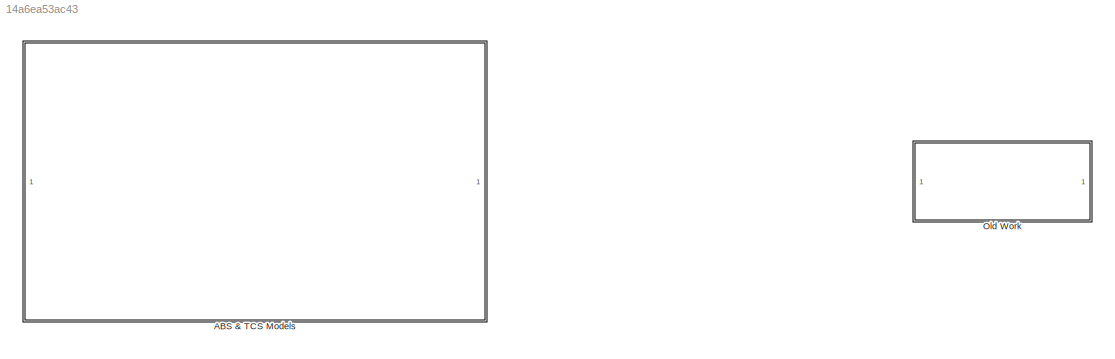
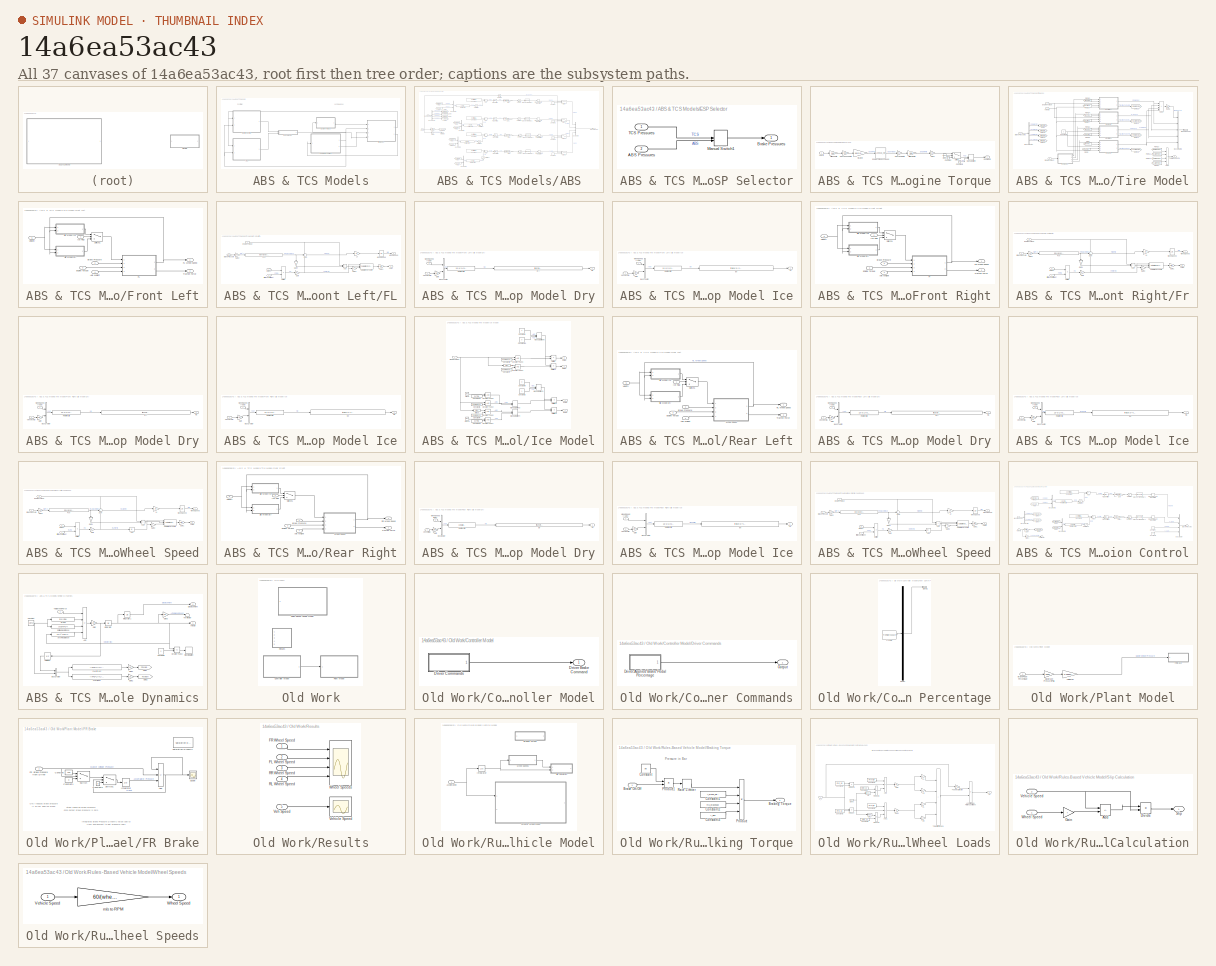
[diagram: thumbnail index - all 37 canvases of the model, root first then tree order]
MODEL slx_14a6ea53ac43
KIND model
CONFIG AbsTol = auto
CONFIG EnableMultiTasking = off
CONFIG FixedStep = auto
CONFIG MaxStep = .001
CONFIG MinStep = auto
CONFIG RelTol = 1e-3
CONFIG SampleTimeConstraint = Unconstrained
CONFIG SolverName = VariableStepAuto
CONFIG StartTime = 0.0
CONFIG StopTime = 4
BLOCK [SubSystem] ABS & TCS Models
  Ports = []
  RequestExecContextInheritance = off
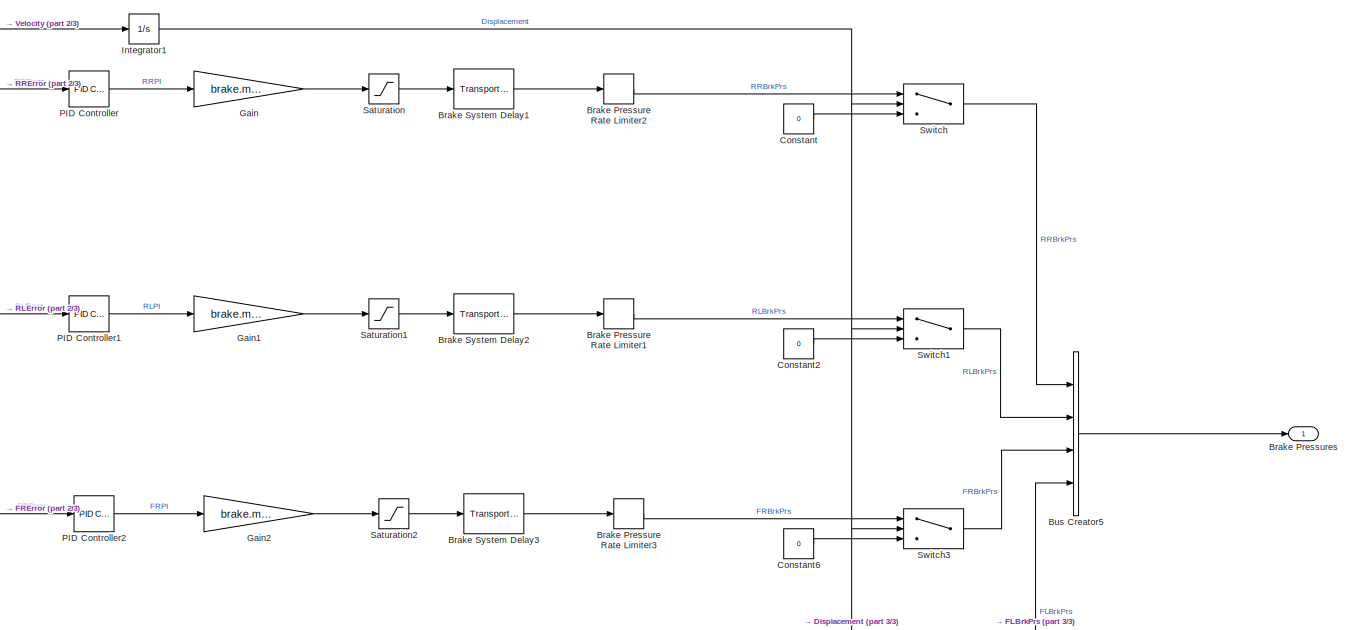
[diagram: ABS & TCS Models/ABS - part 1/3, middle right region]
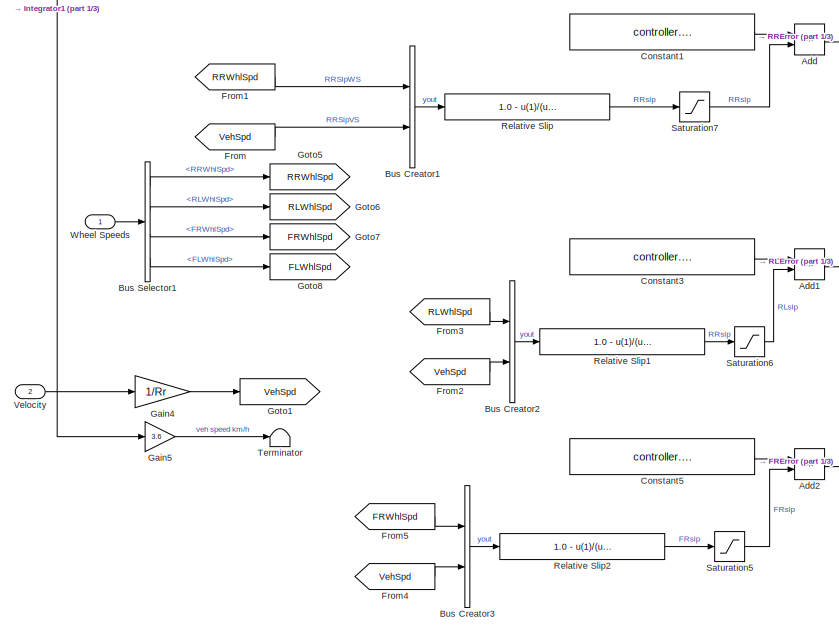
[diagram: ABS & TCS Models/ABS - part 2/3, middle left region]
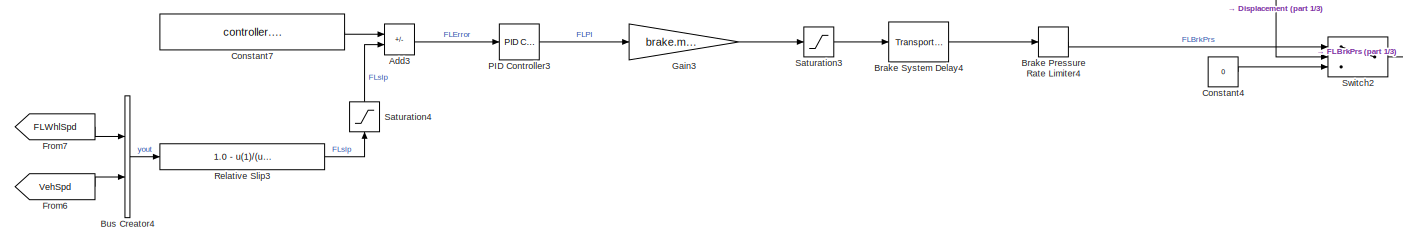
[diagram: ABS & TCS Models/ABS - part 3/3, bottom center region]
BLOCK [SubSystem] ABS & TCS Models/ABS
  Ports = [2, 1]
  RequestExecContextInheritance = off
BLOCK [Sum] ABS & TCS Models/ABS/Add
  IconShape = rectangular
  Inputs = +-
  Ports = [2, 1]
BLOCK [Sum] ABS & TCS Models/ABS/Add1
  IconShape = rectangular
  Inputs = +-
  Ports = [2, 1]
BLOCK [Sum] ABS & TCS Models/ABS/Add2
  IconShape = rectangular
  Inputs = +-
  Ports = [2, 1]
BLOCK [Sum] ABS & TCS Models/ABS/Add3
  IconShape = rectangular
  Inputs = +-
  Ports = [2, 1]
BLOCK [RateLimiter] ABS & TCS Models/ABS/Brake Pressure Rate Limiter1
  FallingSlewLimit = -controller.slew
  RisingSlewLimit = controller.slew
  SampleTimeMode = inherited
BLOCK [RateLimiter] ABS & TCS Models/ABS/Brake Pressure Rate Limiter2
  FallingSlewLimit = -controller.slew
  RisingSlewLimit = controller.slew
  SampleTimeMode = inherited
BLOCK [RateLimiter] ABS & TCS Models/ABS/Brake Pressure Rate Limiter3
  FallingSlewLimit = -controller.slew
  RisingSlewLimit = controller.slew
  SampleTimeMode = inherited
BLOCK [RateLimiter] ABS & TCS Models/ABS/Brake Pressure Rate Limiter4
  FallingSlewLimit = -controller.slew
  RisingSlewLimit = controller.slew
  SampleTimeMode = inherited
BLOCK [Outport] ABS & TCS Models/ABS/Brake Pressures
BLOCK [TransportDelay] ABS & TCS Models/ABS/Brake System Delay1
  DelayTime = controller.brkDelay
  Ports = [1, 1]
BLOCK [TransportDelay] ABS & TCS Models/ABS/Brake System Delay2
  DelayTime = controller.brkDelay
  Ports = [1, 1]
BLOCK [TransportDelay] ABS & TCS Models/ABS/Brake System Delay3
  DelayTime = controller.brkDelay
  Ports = [1, 1]
BLOCK [TransportDelay] ABS & TCS Models/ABS/Brake System Delay4
  DelayTime = controller.brkDelay
  Ports = [1, 1]
BLOCK [BusCreator] ABS & TCS Models/ABS/Bus Creator1
  DisplayOption = bar
  InheritFromInputs = on
  Inputs = 2
  Ports = [2, 1]
BLOCK [BusCreator] ABS & TCS Models/ABS/Bus Creator2
  DisplayOption = bar
  InheritFromInputs = on
  Inputs = 2
  Ports = [2, 1]
BLOCK [BusCreator] ABS & TCS Models/ABS/Bus Creator3
  DisplayOption = bar
  InheritFromInputs = on
  Inputs = 2
  Ports = [2, 1]
BLOCK [BusCreator] ABS & TCS Models/ABS/Bus Creator4
  DisplayOption = bar
  InheritFromInputs = on
  Inputs = 2
  Ports = [2, 1]
BLOCK [BusCreator] ABS & TCS Models/ABS/Bus Creator5
  DisplayOption = bar
  InheritFromInputs = on
  Inputs = 4
  Ports = [4, 1]
BLOCK [BusSelector] ABS & TCS Models/ABS/Bus Selector1
  OutputSignals = RRWhlSpd,RLWhlSpd,FRWhlSpd,FLWhlSpd
  Ports = [1, 4]
BLOCK [Constant] ABS & TCS Models/ABS/Constant
  Value = 0
BLOCK [Constant] ABS & TCS Models/ABS/Constant1
  Value = controller.desiredSlipice
BLOCK [Constant] ABS & TCS Models/ABS/Constant2
  Value = 0
BLOCK [Constant] ABS & TCS Models/ABS/Constant3
  Value = controller.desiredSlipdry
BLOCK [Constant] ABS & TCS Models/ABS/Constant4
  Value = 0
BLOCK [Constant] ABS & TCS Models/ABS/Constant5
  Value = controller.desiredSlipice
BLOCK [Constant] ABS & TCS Models/ABS/Constant6
  Value = 0
BLOCK [Constant] ABS & TCS Models/ABS/Constant7
  Value = controller.desiredSlipdry
BLOCK [From] ABS & TCS Models/ABS/From
  GotoTag = VehSpd
BLOCK [From] ABS & TCS Models/ABS/From1
  GotoTag = RRWhlSpd
BLOCK [From] ABS & TCS Models/ABS/From2
  GotoTag = VehSpd
BLOCK [From] ABS & TCS Models/ABS/From3
  GotoTag = RLWhlSpd
BLOCK [From] ABS & TCS Models/ABS/From4
  GotoTag = VehSpd
BLOCK [From] ABS & TCS Models/ABS/From5
  GotoTag = FRWhlSpd
BLOCK [From] ABS & TCS Models/ABS/From6
  GotoTag = VehSpd
BLOCK [From] ABS & TCS Models/ABS/From7
  GotoTag = FLWhlSpd
BLOCK [Gain] ABS & TCS Models/ABS/Gain
  Gain = brake.maxPrs
BLOCK [Gain] ABS & TCS Models/ABS/Gain1
  Gain = brake.maxPrs
BLOCK [Gain] ABS & TCS Models/ABS/Gain2
  Gain = brake.maxPrs
BLOCK [Gain] ABS & TCS Models/ABS/Gain3
  Gain = brake.maxPrs
BLOCK [Gain] ABS & TCS Models/ABS/Gain4
  Gain = 1/Rr
BLOCK [Gain] ABS & TCS Models/ABS/Gain5
  Gain = 3.6
BLOCK [Goto] ABS & TCS Models/ABS/Goto1
  GotoTag = VehSpd
BLOCK [Goto] ABS & TCS Models/ABS/Goto5
  GotoTag = RRWhlSpd
BLOCK [Goto] ABS & TCS Models/ABS/Goto6
  GotoTag = RLWhlSpd
BLOCK [Goto] ABS & TCS Models/ABS/Goto7
  GotoTag = FRWhlSpd
BLOCK [Goto] ABS & TCS Models/ABS/Goto8
  GotoTag = FLWhlSpd
BLOCK [Integrator] ABS & TCS Models/ABS/Integrator1
  InitialCondition = x0
  Ports = [1, 1]
BLOCK [Reference] ABS & TCS Models/ABS/PID Controller  REF=pid_lib/PID Controller
  Ports = [1, 1]
  SourceBlock = pid_lib/PID Controller
  SourceProductBaseCode = SL
  SourceType = PID 1dof
BLOCK [Reference] ABS & TCS Models/ABS/PID Controller1  REF=pid_lib/PID Controller
  Ports = [1, 1]
  SourceBlock = pid_lib/PID Controller
  SourceProductBaseCode = SL
  SourceType = PID 1dof
BLOCK [Reference] ABS & TCS Models/ABS/PID Controller2  REF=pid_lib/PID Controller
  Ports = [1, 1]
  SourceBlock = pid_lib/PID Controller
  SourceProductBaseCode = SL
  SourceType = PID 1dof
BLOCK [Reference] ABS & TCS Models/ABS/PID Controller3  REF=pid_lib/PID Controller
  Ports = [1, 1]
  SourceBlock = pid_lib/PID Controller
  SourceProductBaseCode = SL
  SourceType = PID 1dof
BLOCK [Fcn] ABS & TCS Models/ABS/Relative Slip
  Expr = 1.0 - u(1)/(u(2) + (u(2)==0)*eps)
  NameLocation = top
BLOCK [Fcn] ABS & TCS Models/ABS/Relative Slip1
  Expr = 1.0 - u(1)/(u(2) + (u(2)==0)*eps)
  NameLocation = top
BLOCK [Fcn] ABS & TCS Models/ABS/Relative Slip2
  Expr = 1.0 - u(1)/(u(2) + (u(2)==0)*eps)
  NameLocation = top
BLOCK [Fcn] ABS & TCS Models/ABS/Relative Slip3
  Expr = 1.0 - u(1)/(u(2) + (u(2)==0)*eps)
  NameLocation = top
BLOCK [Saturate] ABS & TCS Models/ABS/Saturation
  LowerLimit = 0
  UpperLimit = brake.maxPrs
BLOCK [Saturate] ABS & TCS Models/ABS/Saturation1
  LowerLimit = 0
  UpperLimit = brake.maxPrs
BLOCK [Saturate] ABS & TCS Models/ABS/Saturation2
  LowerLimit = 0
  UpperLimit = brake.maxPrs
BLOCK [Saturate] ABS & TCS Models/ABS/Saturation3
  LowerLimit = 0
  UpperLimit = brake.maxPrs
BLOCK [Saturate] ABS & TCS Models/ABS/Saturation4
  LowerLimit = -1
  NameLocation = right
  UpperLimit = 1
BLOCK [Saturate] ABS & TCS Models/ABS/Saturation5
  LowerLimit = -1
  UpperLimit = 1
BLOCK [Saturate] ABS & TCS Models/ABS/Saturation6
  LowerLimit = -1
  UpperLimit = 1
BLOCK [Saturate] ABS & TCS Models/ABS/Saturation7
  LowerLimit = -1
  UpperLimit = 1
BLOCK [Switch] ABS & TCS Models/ABS/Switch
  InputSameDT = off
  SaturateOnIntegerOverflow = off
  Threshold = 10
BLOCK [Switch] ABS & TCS Models/ABS/Switch1
  InputSameDT = off
  SaturateOnIntegerOverflow = off
  Threshold = 10
BLOCK [Switch] ABS & TCS Models/ABS/Switch2
  InputSameDT = off
  SaturateOnIntegerOverflow = off
  Threshold = 10
BLOCK [Switch] ABS & TCS Models/ABS/Switch3
  InputSameDT = off
  SaturateOnIntegerOverflow = off
  Threshold = 10
BLOCK [Terminator] ABS & TCS Models/ABS/Terminator
BLOCK [Inport] ABS & TCS Models/ABS/Velocity
  Port = 2
BLOCK [Inport] ABS & TCS Models/ABS/Wheel Speeds
BLOCK [SubSystem] ABS & TCS Models/ESP Selector
  Ports = [2, 1]
  RequestExecContextInheritance = off
BLOCK [Inport] ABS & TCS Models/ESP Selector/ABS Pressures
  Port = 2
BLOCK [Outport] ABS & TCS Models/ESP Selector/Brake Pressures
BLOCK [ManualSwitch] ABS & TCS Models/ESP Selector/Manual Switch1
BLOCK [Inport] ABS & TCS Models/ESP Selector/TCS Pressures
BLOCK [SubSystem] ABS & TCS Models/Engine Torque
  Ports = [1, 1]
  RequestExecContextInheritance = off
BLOCK [Clock] ABS & TCS Models/Engine Torque/Clock
BLOCK [Constant] ABS & TCS Models/Engine Torque/Constant
  Value = 0
BLOCK [Constant] ABS & TCS Models/Engine Torque/Constant1
  Value = 0
BLOCK [Gain] ABS & TCS Models/Engine Torque/DiffGearRatio
  Gain = 3.08
BLOCK [Gain] ABS & TCS Models/Engine Torque/DiffSpdRatio
  Gain = 3.49
BLOCK [Outport] ABS & TCS Models/Engine Torque/EngWhlTrq
  VectorParamsAs1DForOutWhenUnconnected = off
BLOCK [Lookup_n-D] ABS & TCS Models/Engine Torque/Engine Torque vs Speed
  BreakpointsForDimension1 = [500:500:5000]
  ExtrapMethod = Clip
  InputPortMap = u0
  InternalRulePriority = Speed
  NumberOfTableDimensions = 1
  Ports = [1, 1]
  RndMeth = Simplest
  Table = [200 250 350 350 340 325 275 250 225 200]
  UseLastTableValue = on
BLOCK [Gain] ABS & TCS Models/Engine Torque/Gain1
  Gain = 1/2
BLOCK [ManualSwitch] ABS & TCS Models/Engine Torque/Manual Switch
BLOCK [Switch] ABS & TCS Models/Engine Torque/Switch
  Criteria = u2 > Threshold
  InputSameDT = off
  SaturateOnIntegerOverflow = off
  Threshold = 1
BLOCK [Gain] ABS & TCS Models/Engine Torque/TransGearRatio
  Gain = 3.1
BLOCK [Gain] ABS & TCS Models/Engine Torque/TransSpeedRatio
  Gain = 3.08
BLOCK [Inport] ABS & TCS Models/Engine Torque/Velocity
BLOCK [Gain] ABS & TCS Models/Engine Torque/m//s2rpm
  Gain = 60/(2*pi*Rr)
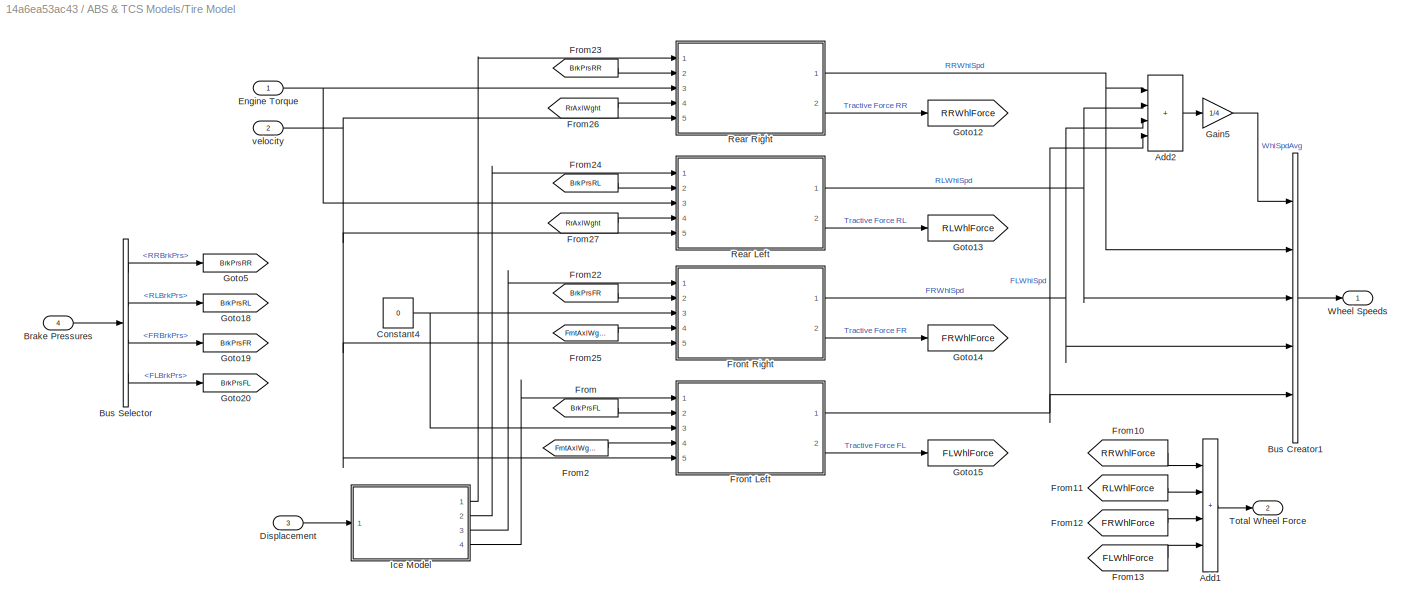
BLOCK [SubSystem] ABS & TCS Models/Tire Model
  Ports = [4, 2]
  RequestExecContextInheritance = off
BLOCK [Sum] ABS & TCS Models/Tire Model/Add1
  IconShape = rectangular
  Inputs = ++++
  Ports = [4, 1]
BLOCK [Sum] ABS & TCS Models/Tire Model/Add2
  IconShape = rectangular
  Inputs = 4
  Ports = [4, 1]
BLOCK [Inport] ABS & TCS Models/Tire Model/Brake Pressures
  Port = 4
BLOCK [BusCreator] ABS & TCS Models/Tire Model/Bus Creator1
  DisplayOption = bar
  InheritFromInputs = on
  Inputs = 5
  Ports = [5, 1]
BLOCK [BusSelector] ABS & TCS Models/Tire Model/Bus Selector
  OutputSignals = RRBrkPrs,RLBrkPrs,FRBrkPrs,FLBrkPrs
  Ports = [1, 4]
BLOCK [Constant] ABS & TCS Models/Tire Model/Constant4
  Value = 0
BLOCK [Inport] ABS & TCS Models/Tire Model/Displacement
  Port = 3
BLOCK [Inport] ABS & TCS Models/Tire Model/Engine Torque
BLOCK [From] ABS & TCS Models/Tire Model/From
  GotoTag = BrkPrsFL
BLOCK [From] ABS & TCS Models/Tire Model/From10
  GotoTag = RRWhlForce
BLOCK [From] ABS & TCS Models/Tire Model/From11
  GotoTag = RLWhlForce
BLOCK [From] ABS & TCS Models/Tire Model/From12
  GotoTag = FRWhlForce
BLOCK [From] ABS & TCS Models/Tire Model/From13
  GotoTag = FLWhlForce
BLOCK [From] ABS & TCS Models/Tire Model/From2
  GotoTag = FrntAxlWght
  TagVisibility = global
BLOCK [From] ABS & TCS Models/Tire Model/From22
  GotoTag = BrkPrsFR
BLOCK [From] ABS & TCS Models/Tire Model/From23
  GotoTag = BrkPrsRR
BLOCK [From] ABS & TCS Models/Tire Model/From24
  GotoTag = BrkPrsRL
BLOCK [From] ABS & TCS Models/Tire Model/From25
  GotoTag = FrntAxlWght
  TagVisibility = global
BLOCK [From] ABS & TCS Models/Tire Model/From26
  GotoTag = RrAxlWght
  TagVisibility = global
BLOCK [From] ABS & TCS Models/Tire Model/From27
  GotoTag = RrAxlWght
  TagVisibility = global
BLOCK [SubSystem] ABS & TCS Models/Tire Model/Front Left
  Ports = [5, 2]
  RequestExecContextInheritance = off
BLOCK [Inport] ABS & TCS Models/Tire Model/Front Left/Axle Weight
  Port = 4
BLOCK [Inport] ABS & TCS Models/Tire Model/Front Left/Brake Pressure
  Port = 2
BLOCK [Inport] ABS & TCS Models/Tire Model/Front Left/Engine Torque
  Port = 3
BLOCK [SubSystem] ABS & TCS Models/Tire Model/Front Left/FL
  Ports = [4, 2]
  RequestExecContextInheritance = off
BLOCK [Outport] ABS & TCS Models/Tire Model/Front Left/FL Wheel Speed
  VectorParamsAs1DForOutWhenUnconnected = off
BLOCK [Gain] ABS & TCS Models/Tire Model/Front Left/FL/1//I
  Gain = 1/I
  OutDataTypeStr = Inherit: Same as input
  ParamDataTypeStr = Inherit: Same as input
  SaturateOnIntegerOverflow = on
BLOCK [Sum] ABS & TCS Models/Tire Model/Front Left/FL/Add
  IconShape = rectangular
  Ports = [2, 1]
BLOCK [Outport] ABS & TCS Models/Tire Model/Front Left/FL/AxleF
  Port = 2
  VectorParamsAs1DForOutWhenUnconnected = off
BLOCK [Inport] ABS & TCS Models/Tire Model/Front Left/FL/Brake Pressure
  Port = 2
BLOCK [Inport] ABS & TCS Models/Tire Model/Front Left/FL/Engine Torque
  Port = 3
BLOCK [Fcn] ABS & TCS Models/Tire Model/Front Left/FL/Fcn
  Expr = (brake.radius*brake.pads*brake.mu*brake.bore^2*pi()*u)/4
BLOCK [Gain] ABS & TCS Models/Tire Model/Front Left/FL/Gain
  Gain = Rr
BLOCK [Gain] ABS & TCS Models/Tire Model/Front Left/FL/Gain1
  Gain = 1/Rr
BLOCK [Gain] ABS & TCS Models/Tire Model/Front Left/FL/Gain2
  Gain = 1e5
BLOCK [Gain] ABS & TCS Models/Tire Model/Front Left/FL/Gain3
  Gain = -1
BLOCK [Gain] ABS & TCS Models/Tire Model/Front Left/FL/Gain4
  Gain = -1
  NameLocation = left
BLOCK [Product] ABS & TCS Models/Tire Model/Front Left/FL/Multiply
  Ports = [2, 1]
BLOCK [Reference] ABS & TCS Models/Tire Model/Front Left/FL/Saturation Dynamic  REF=simulink/Discontinuities/Saturation
Dynamic
  Ports = [3, 1]
  SourceBlock = simulink/Discontinuities/Saturation\nDynamic
  SourceProductBaseCode = SL
  SourceType = Saturation Dynamic
BLOCK [Sum] ABS & TCS Models/Tire Model/Front Left/FL/Sum
  InputSameDT = on
  Inputs = +-+
  OutDataTypeStr = Inherit: Same as first input
  Ports = [3, 1]
  SaturateOnIntegerOverflow = on
BLOCK [Integrator] ABS & TCS Models/Tire Model/Front Left/FL/Wheel Speed
  InitialCondition = v0/Rr
  LimitOutput = on
  LowerSaturationLimit = 0
  Ports = [1, 1]
  UpperSaturationLimit = 1000
BLOCK [Outport] ABS & TCS Models/Tire Model/Front Left/FL/WheelSpeed
  VectorParamsAs1DForOutWhenUnconnected = off
BLOCK [Inport] ABS & TCS Models/Tire Model/Front Left/FL/frictionCoefficient
BLOCK [Inport] ABS & TCS Models/Tire Model/Front Left/FL/weight
  Port = 4
BLOCK [Inport] ABS & TCS Models/Tire Model/Front Left/Ice Flag
BLOCK [SubSystem] ABS & TCS Models/Tire Model/Front Left/Slip Model Dry
  NameLocation = top
  Ports = [2, 1]
  RequestExecContextInheritance = off
BLOCK [BusCreator] ABS & TCS Models/Tire Model/Front Left/Slip Model Dry/Bus Creator
  DisplayOption = bar
  InheritFromInputs = on
  Inputs = 2
  NameLocation = top
  Ports = [2, 1]
BLOCK [Gain] ABS & TCS Models/Tire Model/Front Left/Slip Model Dry/Gain
  Gain = 1/Rr
  NameLocation = top
BLOCK [Fcn] ABS & TCS Models/Tire Model/Front Left/Slip Model Dry/Relative Slip
  Expr = 1.0 - u(1)/(u(2) + (u(2)==0)*eps)
BLOCK [Inport] ABS & TCS Models/Tire Model/Front Left/Slip Model Dry/VehVel (m//s)
BLOCK [Inport] ABS & TCS Models/Tire Model/Front Left/Slip Model Dry/WheelSpeed (rad//s)
  Port = 2
BLOCK [Fcn] ABS & TCS Models/Tire Model/Front Left/Slip Model Dry/dry
  Expr = tire.dry(3)*sin(tire.dry(2)*atan((tire.dry(1)*u(1))-(tire.dry(4)*((tire.dry(1)*u(1))-atan(tire.dry(1)*u(1))))))
  NameLocation = top
BLOCK [Outport] ABS & TCS Models/Tire Model/Front Left/Slip Model Dry/mu
  VectorParamsAs1DForOutWhenUnconnected = off
BLOCK [SubSystem] ABS & TCS Models/Tire Model/Front Left/Slip Model Ice
  NameLocation = top
  Ports = [2, 1]
  RequestExecContextInheritance = off
BLOCK [BusCreator] ABS & TCS Models/Tire Model/Front Left/Slip Model Ice/Bus Creator
  DisplayOption = bar
  InheritFromInputs = on
  Inputs = 2
  NameLocation = top
  Ports = [2, 1]
BLOCK [Gain] ABS & TCS Models/Tire Model/Front Left/Slip Model Ice/Gain
  Gain = 1/Rr
  NameLocation = top
BLOCK [Fcn] ABS & TCS Models/Tire Model/Front Left/Slip Model Ice/Relative Slip
  Expr = 1.0 - u(1)/(u(2) + (u(2)==0)*eps)
BLOCK [Inport] ABS & TCS Models/Tire Model/Front Left/Slip Model Ice/VehVel (m//s)
BLOCK [Inport] ABS & TCS Models/Tire Model/Front Left/Slip Model Ice/WheelSpeed (rad//s)
  Port = 2
BLOCK [Fcn] ABS & TCS Models/Tire Model/Front Left/Slip Model Ice/ice
  Expr = tire.ice(3)*sin(tire.ice(2)*atan((tire.ice(1)*u(1))-(tire.ice(4)*((tire.ice(1)*u(1))-atan(tire.ice(1)*u(1))))))
  NameLocation = top
BLOCK [Outport] ABS & TCS Models/Tire Model/Front Left/Slip Model Ice/mu
  VectorParamsAs1DForOutWhenUnconnected = off
BLOCK [Switch] ABS & TCS Models/Tire Model/Front Left/Switch1
  InputSameDT = off
  NameLocation = top
  SaturateOnIntegerOverflow = off
  Threshold = 1
BLOCK [Outport] ABS & TCS Models/Tire Model/Front Left/Tractive Force
  Port = 2
  VectorParamsAs1DForOutWhenUnconnected = off
BLOCK [Inport] ABS & TCS Models/Tire Model/Front Left/Velocity
  NameLocation = top
  Port = 5
BLOCK [SubSystem] ABS & TCS Models/Tire Model/Front Right
  Ports = [5, 2]
  RequestExecContextInheritance = off
BLOCK [Inport] ABS & TCS Models/Tire Model/Front Right/Axle Weight
  Port = 4
BLOCK [Inport] ABS & TCS Models/Tire Model/Front Right/Brake Pressure
  Port = 2
BLOCK [Inport] ABS & TCS Models/Tire Model/Front Right/Engine Torque
  Port = 3
BLOCK [Outport] ABS & TCS Models/Tire Model/Front Right/FR Wheel Speed
  VectorParamsAs1DForOutWhenUnconnected = off
BLOCK [SubSystem] ABS & TCS Models/Tire Model/Front Right/Fr
  Ports = [4, 2]
  RequestExecContextInheritance = off
BLOCK [Gain] ABS & TCS Models/Tire Model/Front Right/Fr/1//I
  Gain = 1/I
  OutDataTypeStr = Inherit: Same as input
  ParamDataTypeStr = Inherit: Same as input
  SaturateOnIntegerOverflow = on
BLOCK [Sum] ABS & TCS Models/Tire Model/Front Right/Fr/Add
  IconShape = rectangular
  Ports = [2, 1]
BLOCK [Outport] ABS & TCS Models/Tire Model/Front Right/Fr/AxleF
  Port = 2
  VectorParamsAs1DForOutWhenUnconnected = off
BLOCK [Inport] ABS & TCS Models/Tire Model/Front Right/Fr/Brake Pressure
  Port = 2
BLOCK [Inport] ABS & TCS Models/Tire Model/Front Right/Fr/Engine Torque
  Port = 3
BLOCK [Fcn] ABS & TCS Models/Tire Model/Front Right/Fr/Fcn
  Expr = (brake.radius*brake.pads*brake.mu*brake.bore^2*pi()*u)/4
BLOCK [Gain] ABS & TCS Models/Tire Model/Front Right/Fr/Gain
  Gain = Rr
BLOCK [Gain] ABS & TCS Models/Tire Model/Front Right/Fr/Gain1
  Gain = 1/Rr
BLOCK [Gain] ABS & TCS Models/Tire Model/Front Right/Fr/Gain2
  Gain = 1e5
BLOCK [Gain] ABS & TCS Models/Tire Model/Front Right/Fr/Gain3
  Gain = -1
BLOCK [Gain] ABS & TCS Models/Tire Model/Front Right/Fr/Gain4
  Gain = -1
  NameLocation = left
BLOCK [Product] ABS & TCS Models/Tire Model/Front Right/Fr/Multiply
  Ports = [2, 1]
BLOCK [Reference] ABS & TCS Models/Tire Model/Front Right/Fr/Saturation Dynamic  REF=simulink/Discontinuities/Saturation
Dynamic
  Ports = [3, 1]
  SourceBlock = simulink/Discontinuities/Saturation\nDynamic
  SourceProductBaseCode = SL
  SourceType = Saturation Dynamic
BLOCK [Sum] ABS & TCS Models/Tire Model/Front Right/Fr/Sum
  InputSameDT = on
  Inputs = +-+
  OutDataTypeStr = Inherit: Same as first input
  Ports = [3, 1]
  SaturateOnIntegerOverflow = on
BLOCK [Integrator] ABS & TCS Models/Tire Model/Front Right/Fr/Wheel Speed
  InitialCondition = v0/Rr
  LimitOutput = on
  LowerSaturationLimit = 0
  Ports = [1, 1]
  UpperSaturationLimit = 1000
BLOCK [Outport] ABS & TCS Models/Tire Model/Front Right/Fr/WheelSpeed
  VectorParamsAs1DForOutWhenUnconnected = off
BLOCK [Inport] ABS & TCS Models/Tire Model/Front Right/Fr/frictionCoefficient
BLOCK [Inport] ABS & TCS Models/Tire Model/Front Right/Fr/weight
  Port = 4
BLOCK [Inport] ABS & TCS Models/Tire Model/Front Right/Ice Flag
BLOCK [SubSystem] ABS & TCS Models/Tire Model/Front Right/Slip Model Dry
  NameLocation = top
  Ports = [2, 1]
  RequestExecContextInheritance = off
BLOCK [BusCreator] ABS & TCS Models/Tire Model/Front Right/Slip Model Dry/Bus Creator
  DisplayOption = bar
  InheritFromInputs = on
  Inputs = 2
  NameLocation = top
  Ports = [2, 1]
BLOCK [Gain] ABS & TCS Models/Tire Model/Front Right/Slip Model Dry/Gain
  Gain = 1/Rr
  NameLocation = top
BLOCK [Fcn] ABS & TCS Models/Tire Model/Front Right/Slip Model Dry/Relative Slip
  Expr = 1.0 - u(1)/(u(2) + (u(2)==0)*eps)
BLOCK [Inport] ABS & TCS Models/Tire Model/Front Right/Slip Model Dry/VehVel (m//s)
BLOCK [Inport] ABS & TCS Models/Tire Model/Front Right/Slip Model Dry/WheelSpeed (rad//s)
  Port = 2
BLOCK [Fcn] ABS & TCS Models/Tire Model/Front Right/Slip Model Dry/dry
  Expr = tire.dry(3)*sin(tire.dry(2)*atan((tire.dry(1)*u(1))-(tire.dry(4)*((tire.dry(1)*u(1))-atan(tire.dry(1)*u(1))))))
  NameLocation = top
BLOCK [Outport] ABS & TCS Models/Tire Model/Front Right/Slip Model Dry/mu
  VectorParamsAs1DForOutWhenUnconnected = off
BLOCK [SubSystem] ABS & TCS Models/Tire Model/Front Right/Slip Model Ice
  NameLocation = top
  Ports = [2, 1]
  RequestExecContextInheritance = off
BLOCK [BusCreator] ABS & TCS Models/Tire Model/Front Right/Slip Model Ice/Bus Creator
  DisplayOption = bar
  InheritFromInputs = on
  Inputs = 2
  NameLocation = top
  Ports = [2, 1]
BLOCK [Gain] ABS & TCS Models/Tire Model/Front Right/Slip Model Ice/Gain
  Gain = 1/Rr
  NameLocation = top
BLOCK [Fcn] ABS & TCS Models/Tire Model/Front Right/Slip Model Ice/Relative Slip
  Expr = 1.0 - u(1)/(u(2) + (u(2)==0)*eps)
BLOCK [Inport] ABS & TCS Models/Tire Model/Front Right/Slip Model Ice/VehVel (m//s)
BLOCK [Inport] ABS & TCS Models/Tire Model/Front Right/Slip Model Ice/WheelSpeed (rad//s)
  Port = 2
BLOCK [Fcn] ABS & TCS Models/Tire Model/Front Right/Slip Model Ice/ice
  Expr = tire.ice(3)*sin(tire.ice(2)*atan((tire.ice(1)*u(1))-(tire.ice(4)*((tire.ice(1)*u(1))-atan(tire.ice(1)*u(1))))))
  NameLocation = top
BLOCK [Outport] ABS & TCS Models/Tire Model/Front Right/Slip Model Ice/mu
  VectorParamsAs1DForOutWhenUnconnected = off
BLOCK [Switch] ABS & TCS Models/Tire Model/Front Right/Switch1
  InputSameDT = off
  NameLocation = top
  SaturateOnIntegerOverflow = off
  Threshold = 1
BLOCK [Outport] ABS & TCS Models/Tire Model/Front Right/Tractive Force
  Port = 2
  VectorParamsAs1DForOutWhenUnconnected = off
BLOCK [Inport] ABS & TCS Models/Tire Model/Front Right/Velocity
  NameLocation = top
  Port = 5
BLOCK [Gain] ABS & TCS Models/Tire Model/Gain5
  Gain = 1/4
BLOCK [Goto] ABS & TCS Models/Tire Model/Goto12
  GotoTag = RRWhlForce
BLOCK [Goto] ABS & TCS Models/Tire Model/Goto13
  GotoTag = RLWhlForce
BLOCK [Goto] ABS & TCS Models/Tire Model/Goto14
  GotoTag = FRWhlForce
BLOCK [Goto] ABS & TCS Models/Tire Model/Goto15
  GotoTag = FLWhlForce
BLOCK [Goto] ABS & TCS Models/Tire Model/Goto18
  GotoTag = BrkPrsRL
BLOCK [Goto] ABS & TCS Models/Tire Model/Goto19
  GotoTag = BrkPrsFR
BLOCK [Goto] ABS & TCS Models/Tire Model/Goto20
  GotoTag = BrkPrsFL
BLOCK [Goto] ABS & TCS Models/Tire Model/Goto5
  GotoTag = BrkPrsRR
BLOCK [SubSystem] ABS & TCS Models/Tire Model/Ice Model
  Ports = [1, 4]
  RequestExecContextInheritance = off
BLOCK [Bias] ABS & TCS Models/Tire Model/Ice Model/Bias2
  Bias = -L
  SaturateOnIntegerOverflow = off
BLOCK [Bias] ABS & TCS Models/Tire Model/Ice Model/Bias3
  Bias = -L
  SaturateOnIntegerOverflow = off
BLOCK [Clock] ABS & TCS Models/Tire Model/Ice Model/Clock
BLOCK [Clock] ABS & TCS Models/Tire Model/Ice Model/Clock1
BLOCK [Constant] ABS & TCS Models/Tire Model/Ice Model/Constant1
BLOCK [Constant] ABS & TCS Models/Tire Model/Ice Model/Constant15
  Value = iceTime
BLOCK [Constant] ABS & TCS Models/Tire Model/Ice Model/Constant16
  Value = iceTime
BLOCK [Constant] ABS & TCS Models/Tire Model/Ice Model/Constant19
  Value = 0
BLOCK [Constant] ABS & TCS Models/Tire Model/Ice Model/Constant2
BLOCK [Constant] ABS & TCS Models/Tire Model/Ice Model/Constant4
  Value = iceDistance
BLOCK [Constant] ABS & TCS Models/Tire Model/Ice Model/Constant6
  Value = iceDistance
BLOCK [Constant] ABS & TCS Models/Tire Model/Ice Model/Constant7
  Value = iceDistance
BLOCK [Constant] ABS & TCS Models/Tire Model/Ice Model/Constant8
  Value = iceDistance
BLOCK [Constant] ABS & TCS Models/Tire Model/Ice Model/Constant9
  Value = 0
BLOCK [Inport] ABS & TCS Models/Tire Model/Ice Model/Displacement
BLOCK [Outport] ABS & TCS Models/Tire Model/Ice Model/FL Ice
  Port = 4
BLOCK [Outport] ABS & TCS Models/Tire Model/Ice Model/FR Ice
  Port = 3
BLOCK [RelationalOperator] ABS & TCS Models/Tire Model/Ice Model/GreaterThan2
  InputSameDT = off
  OutDataTypeStr = boolean
  Ports = [2, 1]
  RndMeth = Simplest
BLOCK [RelationalOperator] ABS & TCS Models/Tire Model/Ice Model/GreaterThan3
  InputSameDT = off
  OutDataTypeStr = boolean
  Ports = [2, 1]
  RndMeth = Simplest
BLOCK [RelationalOperator] ABS & TCS Models/Tire Model/Ice Model/GreaterThan4
  InputSameDT = off
  OutDataTypeStr = boolean
  Ports = [2, 1]
  RndMeth = Simplest
BLOCK [RelationalOperator] ABS & TCS Models/Tire Model/Ice Model/GreaterThan5
  InputSameDT = off
  OutDataTypeStr = boolean
  Ports = [2, 1]
  RndMeth = Simplest
BLOCK [RelationalOperator] ABS & TCS Models/Tire Model/Ice Model/GreaterThan6
  InputSameDT = off
  OutDataTypeStr = boolean
  Ports = [2, 1]
  RndMeth = Simplest
BLOCK [RelationalOperator] ABS & TCS Models/Tire Model/Ice Model/GreaterThan7
  InputSameDT = off
  OutDataTypeStr = boolean
  Ports = [2, 1]
  RndMeth = Simplest
BLOCK [ManualSwitch] ABS & TCS Models/Tire Model/Ice Model/Manual Switch1
  CurrentSetting = 0
BLOCK [ManualSwitch] ABS & TCS Models/Tire Model/Ice Model/Manual Switch3
BLOCK [ManualSwitch] ABS & TCS Models/Tire Model/Ice Model/Manual Switch4
  CurrentSetting = 0
BLOCK [ManualSwitch] ABS & TCS Models/Tire Model/Ice Model/Manual Switch6
  CurrentSetting = 0
BLOCK [Product] ABS & TCS Models/Tire Model/Ice Model/Multiply
  Ports = [2, 1]
BLOCK [Product] ABS & TCS Models/Tire Model/Ice Model/Multiply1
  Ports = [2, 1]
BLOCK [Product] ABS & TCS Models/Tire Model/Ice Model/Multiply2
  Ports = [2, 1]
BLOCK [Product] ABS & TCS Models/Tire Model/Ice Model/Multiply3
  Ports = [2, 1]
BLOCK [Outport] ABS & TCS Models/Tire Model/Ice Model/RL Ice
  Port = 2
BLOCK [Outport] ABS & TCS Models/Tire Model/Ice Model/RR Ice
BLOCK [SubSystem] ABS & TCS Models/Tire Model/Rear Left
  Ports = [5, 2]
  RequestExecContextInheritance = off
BLOCK [Inport] ABS & TCS Models/Tire Model/Rear Left/Axle Weight
  Port = 4
BLOCK [Inport] ABS & TCS Models/Tire Model/Rear Left/Brake Pressure
  Port = 2
BLOCK [Inport] ABS & TCS Models/Tire Model/Rear Left/Engine Torque
  Port = 3
BLOCK [Inport] ABS & TCS Models/Tire Model/Rear Left/Ice Flag
BLOCK [Outport] ABS & TCS Models/Tire Model/Rear Left/RL Wheel Speed
  VectorParamsAs1DForOutWhenUnconnected = off
BLOCK [SubSystem] ABS & TCS Models/Tire Model/Rear Left/Slip Model Dry
  NameLocation = top
  Ports = [2, 1]
  RequestExecContextInheritance = off
BLOCK [BusCreator] ABS & TCS Models/Tire Model/Rear Left/Slip Model Dry/Bus Creator
  DisplayOption = bar
  InheritFromInputs = on
  Inputs = 2
  NameLocation = top
  Ports = [2, 1]
BLOCK [Gain] ABS & TCS Models/Tire Model/Rear Left/Slip Model Dry/Gain
  Gain = 1/Rr
  NameLocation = top
BLOCK [Fcn] ABS & TCS Models/Tire Model/Rear Left/Slip Model Dry/Relative Slip
  Expr = 1.0 - u(1)/(u(2) + (u(2)==0)*eps)
BLOCK [Inport] ABS & TCS Models/Tire Model/Rear Left/Slip Model Dry/VehVel (m//s)
BLOCK [Inport] ABS & TCS Models/Tire Model/Rear Left/Slip Model Dry/WheelSpeed (rad//s)
  Port = 2
BLOCK [Fcn] ABS & TCS Models/Tire Model/Rear Left/Slip Model Dry/dry
  Expr = tire.dry(3)*sin(tire.dry(2)*atan((tire.dry(1)*u(1))-(tire.dry(4)*((tire.dry(1)*u(1))-atan(tire.dry(1)*u(1))))))
  NameLocation = top
BLOCK [Outport] ABS & TCS Models/Tire Model/Rear Left/Slip Model Dry/mu
  VectorParamsAs1DForOutWhenUnconnected = off
BLOCK [SubSystem] ABS & TCS Models/Tire Model/Rear Left/Slip Model Ice
  NameLocation = top
  Ports = [2, 1]
  RequestExecContextInheritance = off
BLOCK [BusCreator] ABS & TCS Models/Tire Model/Rear Left/Slip Model Ice/Bus Creator
  DisplayOption = bar
  InheritFromInputs = on
  Inputs = 2
  NameLocation = top
  Ports = [2, 1]
BLOCK [Gain] ABS & TCS Models/Tire Model/Rear Left/Slip Model Ice/Gain
  Gain = 1/Rr
  NameLocation = top
BLOCK [Fcn] ABS & TCS Models/Tire Model/Rear Left/Slip Model Ice/Relative Slip
  Expr = 1.0 - u(1)/(u(2) + (u(2)==0)*eps)
BLOCK [Inport] ABS & TCS Models/Tire Model/Rear Left/Slip Model Ice/VehVel (m//s)
BLOCK [Inport] ABS & TCS Models/Tire Model/Rear Left/Slip Model Ice/WheelSpeed (rad//s)
  Port = 2
BLOCK [Fcn] ABS & TCS Models/Tire Model/Rear Left/Slip Model Ice/ice
  Expr = tire.ice(3)*sin(tire.ice(2)*atan((tire.ice(1)*u(1))-(tire.ice(4)*((tire.ice(1)*u(1))-atan(tire.ice(1)*u(1))))))
  NameLocation = top
BLOCK [Outport] ABS & TCS Models/Tire Model/Rear Left/Slip Model Ice/mu
  VectorParamsAs1DForOutWhenUnconnected = off
BLOCK [Switch] ABS & TCS Models/Tire Model/Rear Left/Switch1
  InputSameDT = off
  NameLocation = top
  SaturateOnIntegerOverflow = off
  Threshold = 1
BLOCK [Outport] ABS & TCS Models/Tire Model/Rear Left/Tractive Force
  Port = 2
  VectorParamsAs1DForOutWhenUnconnected = off
BLOCK [Inport] ABS & TCS Models/Tire Model/Rear Left/Velocity
  NameLocation = top
  Port = 5
BLOCK [SubSystem] ABS & TCS Models/Tire Model/Rear Left/Wheel Speed
  Ports = [4, 2]
  RequestExecContextInheritance = off
BLOCK [Gain] ABS & TCS Models/Tire Model/Rear Left/Wheel Speed/1//I
  Gain = 1/I
  OutDataTypeStr = Inherit: Same as input
  ParamDataTypeStr = Inherit: Same as input
  SaturateOnIntegerOverflow = on
BLOCK [Abs] ABS & TCS Models/Tire Model/Rear Left/Wheel Speed/Abs
  SaturateOnIntegerOverflow = off
BLOCK [Sum] ABS & TCS Models/Tire Model/Rear Left/Wheel Speed/Add
  IconShape = rectangular
  Ports = [2, 1]
BLOCK [Outport] ABS & TCS Models/Tire Model/Rear Left/Wheel Speed/AxleF
  Port = 2
  VectorParamsAs1DForOutWhenUnconnected = off
BLOCK [Inport] ABS & TCS Models/Tire Model/Rear Left/Wheel Speed/Brake Pressure
  Port = 2
BLOCK [Inport] ABS & TCS Models/Tire Model/Rear Left/Wheel Speed/Engine Torque
  Port = 3
BLOCK [Fcn] ABS & TCS Models/Tire Model/Rear Left/Wheel Speed/Fcn
  Expr = (brake.radius*brake.pads*brake.mu*brake.bore^2*pi()*u)/4
BLOCK [Gain] ABS & TCS Models/Tire Model/Rear Left/Wheel Speed/Gain
  Gain = Rr
BLOCK [Gain] ABS & TCS Models/Tire Model/Rear Left/Wheel Speed/Gain1
  Gain = 1/Rr
BLOCK [Gain] ABS & TCS Models/Tire Model/Rear Left/Wheel Speed/Gain2
  Gain = 1e5
BLOCK [Gain] ABS & TCS Models/Tire Model/Rear Left/Wheel Speed/Gain3
  Gain = -1
BLOCK [Gain] ABS & TCS Models/Tire Model/Rear Left/Wheel Speed/Gain4
  Gain = -1
  NameLocation = left
BLOCK [Product] ABS & TCS Models/Tire Model/Rear Left/Wheel Speed/Multiply
  Ports = [2, 1]
BLOCK [Reference] ABS & TCS Models/Tire Model/Rear Left/Wheel Speed/Saturation Dynamic  REF=simulink/Discontinuities/Saturation
Dynamic
  Ports = [3, 1]
  SourceBlock = simulink/Discontinuities/Saturation\nDynamic
  SourceProductBaseCode = SL
  SourceType = Saturation Dynamic
BLOCK [Sum] ABS & TCS Models/Tire Model/Rear Left/Wheel Speed/Sum
  InputSameDT = on
  Inputs = +-+
  OutDataTypeStr = Inherit: Same as first input
  Ports = [3, 1]
  SaturateOnIntegerOverflow = on
BLOCK [Integrator] ABS & TCS Models/Tire Model/Rear Left/Wheel Speed/Wheel Speed
  InitialCondition = v0/Rr
  LimitOutput = on
  LowerSaturationLimit = 0
  Ports = [1, 1]
  UpperSaturationLimit = 1000
BLOCK [Outport] ABS & TCS Models/Tire Model/Rear Left/Wheel Speed/WheelSpeed
  VectorParamsAs1DForOutWhenUnconnected = off
BLOCK [Inport] ABS & TCS Models/Tire Model/Rear Left/Wheel Speed/frictionCoefficient
BLOCK [Inport] ABS & TCS Models/Tire Model/Rear Left/Wheel Speed/weight
  Port = 4
BLOCK [SubSystem] ABS & TCS Models/Tire Model/Rear Right
  Ports = [5, 2]
  RequestExecContextInheritance = off
BLOCK [Inport] ABS & TCS Models/Tire Model/Rear Right/Axle Weight
  Port = 4
BLOCK [Inport] ABS & TCS Models/Tire Model/Rear Right/Brake Pressure
  Port = 2
BLOCK [Inport] ABS & TCS Models/Tire Model/Rear Right/Engine Torque
  Port = 3
BLOCK [Inport] ABS & TCS Models/Tire Model/Rear Right/Ice Flag
BLOCK [Outport] ABS & TCS Models/Tire Model/Rear Right/RR Wheel Speed
  VectorParamsAs1DForOutWhenUnconnected = off
BLOCK [SubSystem] ABS & TCS Models/Tire Model/Rear Right/Slip Model Dry
  NameLocation = top
  Ports = [2, 1]
  RequestExecContextInheritance = off
BLOCK [BusCreator] ABS & TCS Models/Tire Model/Rear Right/Slip Model Dry/Bus Creator
  DisplayOption = bar
  InheritFromInputs = on
  Inputs = 2
  NameLocation = top
  Ports = [2, 1]
BLOCK [Gain] ABS & TCS Models/Tire Model/Rear Right/Slip Model Dry/Gain
  Gain = 1/Rr
  NameLocation = top
BLOCK [Fcn] ABS & TCS Models/Tire Model/Rear Right/Slip Model Dry/Relative Slip
  Expr = 1.0 - u(1)/(u(2) + (u(2)==0)*eps)
BLOCK [Inport] ABS & TCS Models/Tire Model/Rear Right/Slip Model Dry/VehVel (m//s)
BLOCK [Inport] ABS & TCS Models/Tire Model/Rear Right/Slip Model Dry/WheelSpeed (rad//s)
  Port = 2
BLOCK [Fcn] ABS & TCS Models/Tire Model/Rear Right/Slip Model Dry/dry
  Expr = tire.dry(3)*sin(tire.dry(2)*atan((tire.dry(1)*u(1))-(tire.dry(4)*((tire.dry(1)*u(1))-atan(tire.dry(1)*u(1))))))
  NameLocation = top
BLOCK [Outport] ABS & TCS Models/Tire Model/Rear Right/Slip Model Dry/mu
  VectorParamsAs1DForOutWhenUnconnected = off
BLOCK [SubSystem] ABS & TCS Models/Tire Model/Rear Right/Slip Model Ice
  NameLocation = top
  Ports = [2, 1]
  RequestExecContextInheritance = off
BLOCK [BusCreator] ABS & TCS Models/Tire Model/Rear Right/Slip Model Ice/Bus Creator
  DisplayOption = bar
  InheritFromInputs = on
  Inputs = 2
  NameLocation = top
  Ports = [2, 1]
BLOCK [Gain] ABS & TCS Models/Tire Model/Rear Right/Slip Model Ice/Gain
  Gain = 1/Rr
  NameLocation = top
BLOCK [Fcn] ABS & TCS Models/Tire Model/Rear Right/Slip Model Ice/Relative Slip
  Expr = 1.0 - u(1)/(u(2) + (u(2)==0)*eps)
BLOCK [Inport] ABS & TCS Models/Tire Model/Rear Right/Slip Model Ice/VehVel (m//s)
BLOCK [Inport] ABS & TCS Models/Tire Model/Rear Right/Slip Model Ice/WheelSpeed (rad//s)
  Port = 2
BLOCK [Fcn] ABS & TCS Models/Tire Model/Rear Right/Slip Model Ice/ice
  Expr = tire.ice(3)*sin(tire.ice(2)*atan((tire.ice(1)*u(1))-(tire.ice(4)*((tire.ice(1)*u(1))-atan(tire.ice(1)*u(1))))))
  NameLocation = top
BLOCK [Outport] ABS & TCS Models/Tire Model/Rear Right/Slip Model Ice/mu
  VectorParamsAs1DForOutWhenUnconnected = off
BLOCK [Switch] ABS & TCS Models/Tire Model/Rear Right/Switch1
  InputSameDT = off
  NameLocation = top
  SaturateOnIntegerOverflow = off
  Threshold = 1
BLOCK [Outport] ABS & TCS Models/Tire Model/Rear Right/Tractive Force
  Port = 2
  VectorParamsAs1DForOutWhenUnconnected = off
BLOCK [Inport] ABS & TCS Models/Tire Model/Rear Right/Velocity
  NameLocation = top
  Port = 5
BLOCK [SubSystem] ABS & TCS Models/Tire Model/Rear Right/Wheel Speed
  Ports = [4, 2]
  RequestExecContextInheritance = off
BLOCK [Gain] ABS & TCS Models/Tire Model/Rear Right/Wheel Speed/1//I
  Gain = 1/I
  OutDataTypeStr = Inherit: Same as input
  ParamDataTypeStr = Inherit: Same as input
  SaturateOnIntegerOverflow = on
BLOCK [Abs] ABS & TCS Models/Tire Model/Rear Right/Wheel Speed/Abs
  SaturateOnIntegerOverflow = off
BLOCK [Sum] ABS & TCS Models/Tire Model/Rear Right/Wheel Speed/Add
  IconShape = rectangular
  Ports = [2, 1]
BLOCK [Outport] ABS & TCS Models/Tire Model/Rear Right/Wheel Speed/AxleF
  Port = 2
  VectorParamsAs1DForOutWhenUnconnected = off
BLOCK [Inport] ABS & TCS Models/Tire Model/Rear Right/Wheel Speed/Brake Pressure
  Port = 2
BLOCK [Inport] ABS & TCS Models/Tire Model/Rear Right/Wheel Speed/Engine Torque
  Port = 3
BLOCK [Fcn] ABS & TCS Models/Tire Model/Rear Right/Wheel Speed/Fcn
  Expr = (brake.radius*brake.pads*brake.mu*brake.bore^2*pi()*u)/4
BLOCK [Gain] ABS & TCS Models/Tire Model/Rear Right/Wheel Speed/Gain
  Gain = Rr
BLOCK [Gain] ABS & TCS Models/Tire Model/Rear Right/Wheel Speed/Gain1
  Gain = 1/Rr
BLOCK [Gain] ABS & TCS Models/Tire Model/Rear Right/Wheel Speed/Gain2
  Gain = 1e5
BLOCK [Gain] ABS & TCS Models/Tire Model/Rear Right/Wheel Speed/Gain3
  Gain = -1
BLOCK [Gain] ABS & TCS Models/Tire Model/Rear Right/Wheel Speed/Gain4
  Gain = -1
  NameLocation = left
BLOCK [Product] ABS & TCS Models/Tire Model/Rear Right/Wheel Speed/Multiply
  Ports = [2, 1]
BLOCK [Reference] ABS & TCS Models/Tire Model/Rear Right/Wheel Speed/Saturation Dynamic  REF=simulink/Discontinuities/Saturation
Dynamic
  Ports = [3, 1]
  SourceBlock = simulink/Discontinuities/Saturation\nDynamic
  SourceProductBaseCode = SL
  SourceType = Saturation Dynamic
BLOCK [Sum] ABS & TCS Models/Tire Model/Rear Right/Wheel Speed/Sum
  InputSameDT = on
  Inputs = +-+
  OutDataTypeStr = Inherit: Same as first input
  Ports = [3, 1]
  SaturateOnIntegerOverflow = on
BLOCK [Integrator] ABS & TCS Models/Tire Model/Rear Right/Wheel Speed/Wheel Speed
  InitialCondition = v0/Rr
  LimitOutput = on
  LowerSaturationLimit = 0
  Ports = [1, 1]
  UpperSaturationLimit = 1000
BLOCK [Outport] ABS & TCS Models/Tire Model/Rear Right/Wheel Speed/WheelSpeed
  VectorParamsAs1DForOutWhenUnconnected = off
BLOCK [Inport] ABS & TCS Models/Tire Model/Rear Right/Wheel Speed/frictionCoefficient
BLOCK [Inport] ABS & TCS Models/Tire Model/Rear Right/Wheel Speed/weight
  Port = 4
BLOCK [Outport] ABS & TCS Models/Tire Model/Total Wheel Force
  Port = 2
BLOCK [Outport] ABS & TCS Models/Tire Model/Wheel Speeds
BLOCK [Inport] ABS & TCS Models/Tire Model/velocity
  Port = 2
BLOCK [SubSystem] ABS & TCS Models/Traction Control
  Ports = [2, 1]
  RequestExecContextInheritance = off
BLOCK [Sum] ABS & TCS Models/Traction Control/Add
  IconShape = rectangular
  Inputs = +-
  Ports = [2, 1]
BLOCK [Sum] ABS & TCS Models/Traction Control/Add1
  IconShape = rectangular
  Inputs = +-
  Ports = [2, 1]
BLOCK [RateLimiter] ABS & TCS Models/Traction Control/Brake Pressure Rate Limiter1
  FallingSlewLimit = -controller.slew
  RisingSlewLimit = controller.slew
  SampleTimeMode = inherited
BLOCK [RateLimiter] ABS & TCS Models/Traction Control/Brake Pressure Rate Limiter2
  FallingSlewLimit = -controller.slew
  RisingSlewLimit = controller.slew
  SampleTimeMode = inherited
BLOCK [Outport] ABS & TCS Models/Traction Control/Brake Pressures
BLOCK [TransportDelay] ABS & TCS Models/Traction Control/Brake System Delay1
  DelayTime = controller.brkDelay
  Ports = [1, 1]
BLOCK [TransportDelay] ABS & TCS Models/Traction Control/Brake System Delay2
  DelayTime = controller.brkDelay
  Ports = [1, 1]
BLOCK [BusCreator] ABS & TCS Models/Traction Control/Bus Creator
  DisplayOption = bar
  InheritFromInputs = on
  Inputs = 4
  Ports = [4, 1]
BLOCK [BusCreator] ABS & TCS Models/Traction Control/Bus Creator1
  DisplayOption = bar
  InheritFromInputs = on
  Inputs = 2
  Ports = [2, 1]
BLOCK [BusCreator] ABS & TCS Models/Traction Control/Bus Creator2
  DisplayOption = bar
  InheritFromInputs = on
  Inputs = 2
  Ports = [2, 1]
BLOCK [BusSelector] ABS & TCS Models/Traction Control/Bus Selector1
  OutputSignals = RRWhlSpd,RLWhlSpd
  Ports = [1, 2]
BLOCK [Constant] ABS & TCS Models/Traction Control/Constant
  Value = 0
BLOCK [Constant] ABS & TCS Models/Traction Control/Constant1
  Value = controller.desiredSlipdry
BLOCK [Constant] ABS & TCS Models/Traction Control/Constant2
  Value = 0
BLOCK [Constant] ABS & TCS Models/Traction Control/Constant3
  Value = controller.desiredSlipice
BLOCK [From] ABS & TCS Models/Traction Control/From
  GotoTag = VehSpd
BLOCK [From] ABS & TCS Models/Traction Control/From1
  GotoTag = RRWhlSpd
BLOCK [From] ABS & TCS Models/Traction Control/From2
  GotoTag = VehSpd
BLOCK [From] ABS & TCS Models/Traction Control/From3
  GotoTag = RLWhlSpd
BLOCK [Gain] ABS & TCS Models/Traction Control/Gain
  Gain = brake.maxPrs
BLOCK [Gain] ABS & TCS Models/Traction Control/Gain1
  Gain = brake.maxPrs
BLOCK [Gain] ABS & TCS Models/Traction Control/Gain2
  Gain = 3.6
BLOCK [Gain] ABS & TCS Models/Traction Control/Gain4
  Gain = 1/Rr
BLOCK [Goto] ABS & TCS Models/Traction Control/Goto1
  GotoTag = VehSpd
BLOCK [Goto] ABS & TCS Models/Traction Control/Goto5
  GotoTag = RRWhlSpd
BLOCK [Goto] ABS & TCS Models/Traction Control/Goto6
  GotoTag = RLWhlSpd
BLOCK [Reference] ABS & TCS Models/Traction Control/PID Controller  REF=pid_lib/PID Controller
  Ports = [1, 1]
  SourceBlock = pid_lib/PID Controller
  SourceProductBaseCode = SL
  SourceType = PID 1dof
BLOCK [Reference] ABS & TCS Models/Traction Control/PID Controller1  REF=pid_lib/PID Controller
  Ports = [1, 1]
  SourceBlock = pid_lib/PID Controller
  SourceProductBaseCode = SL
  SourceType = PID 1dof
BLOCK [Fcn] ABS & TCS Models/Traction Control/Relative Slip
  Expr = 1.0 - u(1)/(u(2) + (u(2)==0)*eps)
  NameLocation = top
BLOCK [Fcn] ABS & TCS Models/Traction Control/Relative Slip1
  Expr = 1.0 - u(1)/(u(2) + (u(2)==0)*eps)
  NameLocation = top
BLOCK [Saturate] ABS & TCS Models/Traction Control/Saturation
  LowerLimit = 0
  UpperLimit = brake.maxPrs
BLOCK [Saturate] ABS & TCS Models/Traction Control/Saturation1
  LowerLimit = 0
  UpperLimit = brake.maxPrs
BLOCK [Saturate] ABS & TCS Models/Traction Control/Saturation6
  LowerLimit = -1
  UpperLimit = 1
BLOCK [Saturate] ABS & TCS Models/Traction Control/Saturation7
  LowerLimit = -1
  UpperLimit = 1
BLOCK [Terminator] ABS & TCS Models/Traction Control/Terminator
BLOCK [Inport] ABS & TCS Models/Traction Control/Velocity
  Port = 2
BLOCK [Inport] ABS & TCS Models/Traction Control/Wheel Speeds
BLOCK [SubSystem] ABS & TCS Models/Vehicle Dynamics
  Ports = [1, 2]
  RequestExecContextInheritance = off
BLOCK [Sum] ABS & TCS Models/Vehicle Dynamics/Add
  IconShape = rectangular
  Inputs = +---
  Ports = [4, 1]
BLOCK [Fcn] ABS & TCS Models/Vehicle Dynamics/Aero Resistance
  Expr = 1/2*u^2*rho*Cd*Af
BLOCK [BusCreator] ABS & TCS Models/Vehicle Dynamics/Bus Creator
  DisplayOption = bar
  InheritFromInputs = on
  Inputs = 2
  Ports = [2, 1]
BLOCK [Constant] ABS & TCS Models/Vehicle Dynamics/Constant
  Value = alpha
BLOCK [Constant] ABS & TCS Models/Vehicle Dynamics/Constant6
  Value = 0
BLOCK [Outport] ABS & TCS Models/Vehicle Dynamics/Displacement
  Port = 2
BLOCK [Fcn] ABS & TCS Models/Vehicle Dynamics/Fvert, Front
  Expr = ((m*g*Lr)/(L)-(m*u(1)*h_g)/(L)-(m*g*sin(u(2))*h_g)/(L))
BLOCK [Fcn] ABS & TCS Models/Vehicle Dynamics/Fvert, Rear
  Expr = ((m*g*Lr)/(L)+(m*u(1)*h_g)/(L)+(m*g*sin(u(2))*h_g)/(L))
BLOCK [Gain] ABS & TCS Models/Vehicle Dynamics/Gain
  Gain = 1/m
BLOCK [Gain] ABS & TCS Models/Vehicle Dynamics/Gain1
  Gain = 1/2
BLOCK [Gain] ABS & TCS Models/Vehicle Dynamics/Gain2
  Gain = 1/2
BLOCK [Gain] ABS & TCS Models/Vehicle Dynamics/Gain3
  Gain = 1/Rr
BLOCK [Goto] ABS & TCS Models/Vehicle Dynamics/Goto1
  GotoTag = FrntAxlWght
  TagVisibility = global
BLOCK [Goto] ABS & TCS Models/Vehicle Dynamics/Goto2
  GotoTag = RrAxlWght
  TagVisibility = global
BLOCK [Fcn] ABS & TCS Models/Vehicle Dynamics/Grade
  Expr = m*g*sin(u)
BLOCK [RelationalOperator] ABS & TCS Models/Vehicle Dynamics/GreaterThan2
  InputSameDT = off
  Operator = <=
  OutDataTypeStr = boolean
  Ports = [2, 1]
  RndMeth = Simplest
BLOCK [Integrator] ABS & TCS Models/Vehicle Dynamics/Integrator
  InitialCondition = v0
  Ports = [1, 1]
BLOCK [Integrator] ABS & TCS Models/Vehicle Dynamics/Integrator1
  InitialCondition = x0
  Ports = [1, 1]
BLOCK [Fcn] ABS & TCS Models/Vehicle Dynamics/Rolling Resistance
  Expr = cos(u)*m*g*f
BLOCK [Stop] ABS & TCS Models/Vehicle Dynamics/Stop Simulation
BLOCK [Terminator] ABS & TCS Models/Vehicle Dynamics/Terminator
BLOCK [Inport] ABS & TCS Models/Vehicle Dynamics/Total Wheel Force
BLOCK [UnitDelay] ABS & TCS Models/Vehicle Dynamics/Unit Delay
  HasFrameUpgradeWarning = on
  SampleTime = -1
BLOCK [Outport] ABS & TCS Models/Vehicle Dynamics/velocity
BLOCK [SubSystem] Old Work
  Commented = on
  Ports = []
  RequestExecContextInheritance = off
BLOCK [SubSystem] Old Work/Controller Model
  Commented = on
  Ports = [0, 1]
  RequestExecContextInheritance = off
BLOCK [Outport] Old Work/Controller Model/Driver Brake Command
BLOCK [SubSystem] Old Work/Controller Model/Driver Commands
  Ports = [0, 1]
  RequestExecContextInheritance = off
BLOCK [SubSystem] Old Work/Controller Model/Driver Commands/Driver-Applied Brake Pedal Percentage
  ClipboardFcn = sigbuilder_block('clipboard');
  CloseFcn = sigbuilder_block('close');
  ContinueFcn = sigbuilder_block('continue');
  CopyFcn = sigbuilder_block('copy');
  DeleteFcn = sigbuilder_block('delete');
  LoadFcn = sigbuilder_block('load');
  MaskHideContents = on
  ModelCloseFcn = sigbuilder_block('modelClose');
  NameChangeFcn = sigbuilder_block('namechange');
  OpenFcn = sigbuilder_block('open',[437.6 199.2 550.4 400 ]);
  PauseFcn = sigbuilder_block('pause');
  Ports = [0, 1]
  PreSaveFcn = sigbuilder_block('preSave');
  RequestExecContextInheritance = off
  StartFcn = sigbuilder_block('start');
  StopFcn = sigbuilder_block('stop');
  Tag = STV Subsys
BLOCK [Demux] Old Work/Controller Model/Driver Commands/Driver-Applied Brake Pedal Percentage/Demux
  DisplayOption = none
  Outputs = 1
  Ports = [1, 1]
  Tag = STV Demux
BLOCK [FromWorkspace] Old Work/Controller Model/Driver Commands/Driver-Applied Brake Pedal Percentage/FromWs
  Tag = STV FromWs
  VariableName = tuvar
BLOCK [Outport] Old Work/Controller Model/Driver Commands/Driver-Applied Brake Pedal Percentage/Signal 1
  Tag = STV Outport
BLOCK [Outport] Old Work/Controller Model/Driver Commands/Output
BLOCK [SubSystem] Old Work/Plant Model
  Commented = on
  Ports = [1]
  RequestExecContextInheritance = off
BLOCK [Inport] Old Work/Plant Model/Brake Pedal Percentage
BLOCK [SubSystem] Old Work/Plant Model/FR Brake
  Ports = [1]
  RequestExecContextInheritance = off
BLOCK [Sum] Old Work/Plant Model/FR Brake/Add
  IconShape = rectangular
  Inputs = ++-
  Ports = [3, 1]
BLOCK [Constant] Old Work/Plant Model/FR Brake/Constant
  Value = 100
BLOCK [Constant] Old Work/Plant Model/FR Brake/Constant1
  Value = 0
BLOCK [Constant] Old Work/Plant Model/FR Brake/Constant2
  Value = 0
BLOCK [Inport] Old Work/Plant Model/FR Brake/FR Brake Pressure from Driver
BLOCK [Integrator] Old Work/Plant Model/FR Brake/Integrator
  Ports = [1, 1]
BLOCK [Reference] Old Work/Plant Model/FR Brake/Saturation Dynamic  REF=simulink/Discontinuities/Saturation
Dynamic
  Ports = [3, 1]
  SourceBlock = simulink/Discontinuities/Saturation\nDynamic
  SourceProductBaseCode = SL
  SourceType = Saturation Dynamic
BLOCK [Scope] Old Work/Plant Model/FR Brake/Scope
  Floating = off
  NumInputPorts = 1
  Ports = [1]
  ScopeSpecificationString = Simulink.scopes.TimeScopeBlockCfg('CurrentConfiguration', extmgr.ConfigurationSet(extmgr.Configuration('Core','General UI',true),extmgr.Configuration('Core','Source UI',true),extmgr.Configuration('Sources','WiredSimulink',true,'DataLoggingVariableName','ScopeData2'),extmgr.Configuration('Visuals','Time Domain',true),extmgr.Configuration('Tools','Plot Navigation',true),extmgr.Configuration('Tools',...<+40ch>
BLOCK [Switch] Old Work/Plant Model/FR Brake/Switch
  Criteria = u2 > Threshold
  InputSameDT = off
  SaturateOnIntegerOverflow = off
BLOCK [Switch] Old Work/Plant Model/FR Brake/Switch1
  InputSameDT = off
  SaturateOnIntegerOverflow = off
BLOCK [Gain] Old Work/Plant Model/Max Brake Pressure [PSI]1
  Gain = 2000
BLOCK [Gain] Old Work/Plant Model/PSI to BAR1
  Gain = 0.0689476
BLOCK [SubSystem] Old Work/Results
  Commented = on
  Ports = [5]
  RequestExecContextInheritance = off
BLOCK [Inport] Old Work/Results/FL Wheel Speed
  Port = 2
BLOCK [Inport] Old Work/Results/FR Wheel Speed
BLOCK [Inport] Old Work/Results/RL Wheel Speed
  Port = 4
BLOCK [Inport] Old Work/Results/RR Wheel Speed
  Port = 3
BLOCK [Inport] Old Work/Results/Veh Speed
  Port = 5
BLOCK [Scope] Old Work/Results/Vehicle Speed
  Floating = off
  NumInputPorts = 1
  Ports = [1]
  ScopeSpecificationString = Simulink.scopes.TimeScopeBlockCfg('CurrentConfiguration', extmgr.ConfigurationSet(extmgr.Configuration('Core','General UI',true),extmgr.Configuration('Core','Source UI',true),extmgr.Configuration('Sources','WiredSimulink',true,'DataLoggingVariableName','ScopeData1'),extmgr.Configuration('Visuals','Time Domain',true),extmgr.Configuration('Tools','Plot Navigation',true),extmgr.Configuration('Tools',...<+58ch>
BLOCK [Scope] Old Work/Results/Wheel Speeds
  Floating = off
  NumInputPorts = 4
  Ports = [4]
  ScopeSpecificationString = Simulink.scopes.TimeScopeBlockCfg('CurrentConfiguration', extmgr.ConfigurationSet(extmgr.Configuration('Core','General UI',true),extmgr.Configuration('Core','Source UI',true),extmgr.Configuration('Sources','WiredSimulink',true),extmgr.Configuration('Visuals','Time Domain',true,'SerializedDisplays',{struct('MinYLimReal','-1.00000','MaxYLimReal','1.00000','YLabelReal','','MinYLimMag','0.00000','MaxY...<+3591ch>
BLOCK [SubSystem] Old Work/Rules-Based Vehicle Model
  Commented = on
  Ports = [1]
  RequestExecContextInheritance = off
BLOCK [Inport] Old Work/Rules-Based Vehicle Model/Acceleration
BLOCK [SubSystem] Old Work/Rules-Based Vehicle Model/Braking Torque
  Ports = [1, 1]
  RequestExecContextInheritance = off
BLOCK [Inport] Old Work/Rules-Based Vehicle Model/Braking Torque/Brake On//Off
BLOCK [Outport] Old Work/Rules-Based Vehicle Model/Braking Torque/Braking Torque
BLOCK [Constant] Old Work/Rules-Based Vehicle Model/Braking Torque/Constant
  Value = 96
BLOCK [Constant] Old Work/Rules-Based Vehicle Model/Braking Torque/Constant1
  Value = A_brake_piston
BLOCK [Constant] Old Work/Rules-Based Vehicle Model/Braking Torque/Constant2
  Value = mu_brakepad
BLOCK [Constant] Old Work/Rules-Based Vehicle Model/Braking Torque/Constant3
  Value = r_disc
BLOCK [Product] Old Work/Rules-Based Vehicle Model/Braking Torque/Product
  Inputs = 4
  Ports = [4, 1]
BLOCK [Product] Old Work/Rules-Based Vehicle Model/Braking Torque/Product1
  Ports = [2, 1]
BLOCK [RateLimiter] Old Work/Rules-Based Vehicle Model/Braking Torque/Rate Limiter
  FallingSlewLimit = -100
  RisingSlewLimit = 100
  SampleTimeMode = inherited
BLOCK [SubSystem] Old Work/Rules-Based Vehicle Model/Dynamic Wheel Loads
  Ports = [2, 1]
  RequestExecContextInheritance = off
BLOCK [Sum] Old Work/Rules-Based Vehicle Model/Dynamic Wheel Loads/Add
  IconShape = rectangular
  Inputs = +--
  Ports = [3, 1]
BLOCK [Sum] Old Work/Rules-Based Vehicle Model/Dynamic Wheel Loads/Add1
  IconShape = rectangular
  Inputs = +++
  Ports = [3, 1]
BLOCK [Constant] Old Work/Rules-Based Vehicle Model/Dynamic Wheel Loads/Constant1
  Value = m*(h_s/l)
BLOCK [Constant] Old Work/Rules-Based Vehicle Model/Dynamic Wheel Loads/Constant2
  Value = m*g*(h_s/l)
BLOCK [Constant] Old Work/Rules-Based Vehicle Model/Dynamic Wheel Loads/Constant3
  Value = m*(h_s/l)
BLOCK [Constant] Old Work/Rules-Based Vehicle Model/Dynamic Wheel Loads/Constant4
  Value = m*g*(l_r/l)
BLOCK [Constant] Old Work/Rules-Based Vehicle Model/Dynamic Wheel Loads/Constant5
  Value = m*g*(h_s/l)
BLOCK [Constant] Old Work/Rules-Based Vehicle Model/Dynamic Wheel Loads/Constant6
  Value = m*g*(l_f/l)
BLOCK [Gain] Old Work/Rules-Based Vehicle Model/Dynamic Wheel Loads/FL
BLOCK [Gain] Old Work/Rules-Based Vehicle Model/Dynamic Wheel Loads/FR
BLOCK [Gain] Old Work/Rules-Based Vehicle Model/Dynamic Wheel Loads/Force in X-Direction
  Gain = m
BLOCK [Gain] Old Work/Rules-Based Vehicle Model/Dynamic Wheel Loads/Gain
  Gain = 1/2
BLOCK [Gain] Old Work/Rules-Based Vehicle Model/Dynamic Wheel Loads/Gain1
  Gain = 1/2
BLOCK [Product] Old Work/Rules-Based Vehicle Model/Dynamic Wheel Loads/Longitudinal Friction Coefficient
  Inputs = */
  Ports = [2, 1]
BLOCK [Product] Old Work/Rules-Based Vehicle Model/Dynamic Wheel Loads/Product
  Ports = [2, 1]
BLOCK [Product] Old Work/Rules-Based Vehicle Model/Dynamic Wheel Loads/Product1
  Ports = [2, 1]
BLOCK [Product] Old Work/Rules-Based Vehicle Model/Dynamic Wheel Loads/Product2
  Ports = [2, 1]
BLOCK [Product] Old Work/Rules-Based Vehicle Model/Dynamic Wheel Loads/Product3
  Ports = [2, 1]
BLOCK [Gain] Old Work/Rules-Based Vehicle Model/Dynamic Wheel Loads/RL
BLOCK [Gain] Old Work/Rules-Based Vehicle Model/Dynamic Wheel Loads/RR
BLOCK [Trigonometry] Old Work/Rules-Based Vehicle Model/Dynamic Wheel Loads/Sin
  Ports = [1, 1]
BLOCK [Trigonometry] Old Work/Rules-Based Vehicle Model/Dynamic Wheel Loads/Sin1
  Ports = [1, 1]
BLOCK [Sum] Old Work/Rules-Based Vehicle Model/Dynamic Wheel Loads/Total Vertical Force
  IconShape = rectangular
  Inputs = ++++
  Ports = [4, 1]
BLOCK [Inport] Old Work/Rules-Based Vehicle Model/Dynamic Wheel Loads/a_x
BLOCK [Inport] Old Work/Rules-Based Vehicle Model/Dynamic Wheel Loads/alpha
  Port = 2
BLOCK [Outport] Old Work/Rules-Based Vehicle Model/Dynamic Wheel Loads/mu
BLOCK [Integrator] Old Work/Rules-Based Vehicle Model/Integrator
  InitialCondition = 90
  Ports = [1, 1]
BLOCK [SubSystem] Old Work/Rules-Based Vehicle Model/Slip Calculation
  Ports = [2, 1]
  RequestExecContextInheritance = off
BLOCK [Sum] Old Work/Rules-Based Vehicle Model/Slip Calculation/Add
  IconShape = rectangular
  Inputs = +-
  Ports = [2, 1]
BLOCK [Product] Old Work/Rules-Based Vehicle Model/Slip Calculation/Divide
  Inputs = */
  Ports = [2, 1]
BLOCK [Gain] Old Work/Rules-Based Vehicle Model/Slip Calculation/Gain
  Gain = r
BLOCK [Outport] Old Work/Rules-Based Vehicle Model/Slip Calculation/Slip
BLOCK [Inport] Old Work/Rules-Based Vehicle Model/Slip Calculation/Vehicle Speed
  Port = 2
BLOCK [Inport] Old Work/Rules-Based Vehicle Model/Slip Calculation/Wheel Speed
BLOCK [SubSystem] Old Work/Rules-Based Vehicle Model/Wheel Speeds
  Ports = [1, 1]
  RequestExecContextInheritance = off
BLOCK [Inport] Old Work/Rules-Based Vehicle Model/Wheel Speeds/Vehicle Speed
BLOCK [Outport] Old Work/Rules-Based Vehicle Model/Wheel Speeds/Wheel Speed
BLOCK [Gain] Old Work/Rules-Based Vehicle Model/Wheel Speeds/m//s to RPM
  Gain = 60/(wheel_diameter*pi)
ANNOTATION ABS & TCS Models: Controller
ANNOTATION ABS & TCS Models: Vehicle Model
ANNOTATION Old Work/Plant Model/FR Brake: Integrates Brake Pressure Dynamic value [bar/s] from assignment to get pressure [bar]
ANNOTATION Old Work/Plant Model/FR Brake: Only reduces brake pressure if driver applies brake
ANNOTATION Old Work/Plant Model/FR Brake: Stops reducing brake pressure once output brake pressure is zero
ANNOTATION Old Work/Rules-Based Vehicle Model/Braking Torque: Pressure in Bar
ANNOTATION Old Work/Rules-Based Vehicle Model/Dynamic Wheel Loads: if ax is negative, deceleration happens. If alpha is negative, downhill.
LINE ABS & TCS Models/ABS/Add1:1 -> ABS & TCS Models/ABS/PID Controller1:1
LINE ABS & TCS Models/ABS/Add2:1 -> ABS & TCS Models/ABS/PID Controller2:1
LINE ABS & TCS Models/ABS/Add3:1 -> ABS & TCS Models/ABS/PID Controller3:1
LINE ABS & TCS Models/ABS/Add:1 -> ABS & TCS Models/ABS/PID Controller:1
LINE ABS & TCS Models/ABS/Brake Pressure Rate Limiter1:1 -> ABS & TCS Models/ABS/Switch1:1
LINE ABS & TCS Models/ABS/Brake Pressure Rate Limiter2:1 -> ABS & TCS Models/ABS/Switch:1
LINE ABS & TCS Models/ABS/Brake Pressure Rate Limiter3:1 -> ABS & TCS Models/ABS/Switch3:1
LINE ABS & TCS Models/ABS/Brake Pressure Rate Limiter4:1 -> ABS & TCS Models/ABS/Switch2:1
LINE ABS & TCS Models/ABS/Brake System Delay1:1 -> ABS & TCS Models/ABS/Brake Pressure Rate Limiter2:1
LINE ABS & TCS Models/ABS/Brake System Delay2:1 -> ABS & TCS Models/ABS/Brake Pressure Rate Limiter1:1
LINE ABS & TCS Models/ABS/Brake System Delay3:1 -> ABS & TCS Models/ABS/Brake Pressure Rate Limiter3:1
LINE ABS & TCS Models/ABS/Brake System Delay4:1 -> ABS & TCS Models/ABS/Brake Pressure Rate Limiter4:1
LINE ABS & TCS Models/ABS/Bus Creator1:1 -> ABS & TCS Models/ABS/Relative Slip:1
LINE ABS & TCS Models/ABS/Bus Creator2:1 -> ABS & TCS Models/ABS/Relative Slip1:1
LINE ABS & TCS Models/ABS/Bus Creator3:1 -> ABS & TCS Models/ABS/Relative Slip2:1
LINE ABS & TCS Models/ABS/Bus Creator4:1 -> ABS & TCS Models/ABS/Relative Slip3:1
LINE ABS & TCS Models/ABS/Bus Creator5:1 -> ABS & TCS Models/ABS/Brake Pressures:1
LINE ABS & TCS Models/ABS/Bus Selector1:1 -> ABS & TCS Models/ABS/Goto5:1
LINE ABS & TCS Models/ABS/Bus Selector1:2 -> ABS & TCS Models/ABS/Goto6:1
LINE ABS & TCS Models/ABS/Bus Selector1:3 -> ABS & TCS Models/ABS/Goto7:1
LINE ABS & TCS Models/ABS/Bus Selector1:4 -> ABS & TCS Models/ABS/Goto8:1
LINE ABS & TCS Models/ABS/Constant1:1 -> ABS & TCS Models/ABS/Add:1
LINE ABS & TCS Models/ABS/Constant2:1 -> ABS & TCS Models/ABS/Switch1:3
LINE ABS & TCS Models/ABS/Constant3:1 -> ABS & TCS Models/ABS/Add1:1
LINE ABS & TCS Models/ABS/Constant4:1 -> ABS & TCS Models/ABS/Switch2:3
LINE ABS & TCS Models/ABS/Constant5:1 -> ABS & TCS Models/ABS/Add2:1
LINE ABS & TCS Models/ABS/Constant6:1 -> ABS & TCS Models/ABS/Switch3:3
LINE ABS & TCS Models/ABS/Constant7:1 -> ABS & TCS Models/ABS/Add3:1
LINE ABS & TCS Models/ABS/Constant:1 -> ABS & TCS Models/ABS/Switch:3
LINE ABS & TCS Models/ABS/From1:1 -> ABS & TCS Models/ABS/Bus Creator1:1
LINE ABS & TCS Models/ABS/From2:1 -> ABS & TCS Models/ABS/Bus Creator2:2
LINE ABS & TCS Models/ABS/From3:1 -> ABS & TCS Models/ABS/Bus Creator2:1
LINE ABS & TCS Models/ABS/From4:1 -> ABS & TCS Models/ABS/Bus Creator3:2
LINE ABS & TCS Models/ABS/From5:1 -> ABS & TCS Models/ABS/Bus Creator3:1
LINE ABS & TCS Models/ABS/From6:1 -> ABS & TCS Models/ABS/Bus Creator4:2
LINE ABS & TCS Models/ABS/From7:1 -> ABS & TCS Models/ABS/Bus Creator4:1
LINE ABS & TCS Models/ABS/From:1 -> ABS & TCS Models/ABS/Bus Creator1:2
LINE ABS & TCS Models/ABS/Gain1:1 -> ABS & TCS Models/ABS/Saturation1:1
LINE ABS & TCS Models/ABS/Gain2:1 -> ABS & TCS Models/ABS/Saturation2:1
LINE ABS & TCS Models/ABS/Gain3:1 -> ABS & TCS Models/ABS/Saturation3:1
LINE ABS & TCS Models/ABS/Gain4:1 -> ABS & TCS Models/ABS/Goto1:1
LINE ABS & TCS Models/ABS/Gain5:1 -> ABS & TCS Models/ABS/Terminator:1
LINE ABS & TCS Models/ABS/Gain:1 -> ABS & TCS Models/ABS/Saturation:1
NET ABS & TCS Models/ABS/Integrator1:1 -> ABS & TCS Models/ABS/Switch1:2, ABS & TCS Models/ABS/Switch2:2, ABS & TCS Models/ABS/Switch3:2, ABS & TCS Models/ABS/Switch:2
LINE ABS & TCS Models/ABS/PID Controller1:1 -> ABS & TCS Models/ABS/Gain1:1
LINE ABS & TCS Models/ABS/PID Controller2:1 -> ABS & TCS Models/ABS/Gain2:1
LINE ABS & TCS Models/ABS/PID Controller3:1 -> ABS & TCS Models/ABS/Gain3:1
LINE ABS & TCS Models/ABS/PID Controller:1 -> ABS & TCS Models/ABS/Gain:1
LINE ABS & TCS Models/ABS/Relative Slip1:1 -> ABS & TCS Models/ABS/Saturation6:1
LINE ABS & TCS Models/ABS/Relative Slip2:1 -> ABS & TCS Models/ABS/Saturation5:1
LINE ABS & TCS Models/ABS/Relative Slip3:1 -> ABS & TCS Models/ABS/Saturation4:1
LINE ABS & TCS Models/ABS/Relative Slip:1 -> ABS & TCS Models/ABS/Saturation7:1
LINE ABS & TCS Models/ABS/Saturation1:1 -> ABS & TCS Models/ABS/Brake System Delay2:1
LINE ABS & TCS Models/ABS/Saturation2:1 -> ABS & TCS Models/ABS/Brake System Delay3:1
LINE ABS & TCS Models/ABS/Saturation3:1 -> ABS & TCS Models/ABS/Brake System Delay4:1
LINE ABS & TCS Models/ABS/Saturation4:1 -> ABS & TCS Models/ABS/Add3:2
LINE ABS & TCS Models/ABS/Saturation5:1 -> ABS & TCS Models/ABS/Add2:2
LINE ABS & TCS Models/ABS/Saturation6:1 -> ABS & TCS Models/ABS/Add1:2
LINE ABS & TCS Models/ABS/Saturation7:1 -> ABS & TCS Models/ABS/Add:2
LINE ABS & TCS Models/ABS/Saturation:1 -> ABS & TCS Models/ABS/Brake System Delay1:1
LINE ABS & TCS Models/ABS/Switch1:1 -> ABS & TCS Models/ABS/Bus Creator5:2
LINE ABS & TCS Models/ABS/Switch2:1 -> ABS & TCS Models/ABS/Bus Creator5:4
LINE ABS & TCS Models/ABS/Switch3:1 -> ABS & TCS Models/ABS/Bus Creator5:3
LINE ABS & TCS Models/ABS/Switch:1 -> ABS & TCS Models/ABS/Bus Creator5:1
NET ABS & TCS Models/ABS/Velocity:1 -> ABS & TCS Models/ABS/Gain4:1, ABS & TCS Models/ABS/Gain5:1, ABS & TCS Models/ABS/Integrator1:1
LINE ABS & TCS Models/ABS/Wheel Speeds:1 -> ABS & TCS Models/ABS/Bus Selector1:1
LINE ABS & TCS Models/ABS:1 -> ABS & TCS Models/ESP Selector:2
LINE ABS & TCS Models/ESP Selector/ABS Pressures:1 -> ABS & TCS Models/ESP Selector/Manual Switch1:2
LINE ABS & TCS Models/ESP Selector/Manual Switch1:1 -> ABS & TCS Models/ESP Selector/Brake Pressures:1
LINE ABS & TCS Models/ESP Selector/TCS Pressures:1 -> ABS & TCS Models/ESP Selector/Manual Switch1:1
LINE ABS & TCS Models/ESP Selector:1 -> ABS & TCS Models/Tire Model:4
LINE ABS & TCS Models/Engine Torque/Clock:1 -> ABS & TCS Models/Engine Torque/Switch:2
LINE ABS & TCS Models/Engine Torque/Constant1:1 -> ABS & TCS Models/Engine Torque/Manual Switch:2
LINE ABS & TCS Models/Engine Torque/Constant:1 -> ABS & TCS Models/Engine Torque/Switch:3
LINE ABS & TCS Models/Engine Torque/DiffGearRatio:1 -> ABS & TCS Models/Engine Torque/Gain1:1
LINE ABS & TCS Models/Engine Torque/DiffSpdRatio:1 -> ABS & TCS Models/Engine Torque/TransSpeedRatio:1
LINE ABS & TCS Models/Engine Torque/Engine Torque vs Speed:1 -> ABS & TCS Models/Engine Torque/TransGearRatio:1
LINE ABS & TCS Models/Engine Torque/Gain1:1 -> ABS & TCS Models/Engine Torque/Switch:1
LINE ABS & TCS Models/Engine Torque/Manual Switch:1 -> ABS & TCS Models/Engine Torque/EngWhlTrq:1
LINE ABS & TCS Models/Engine Torque/Switch:1 -> ABS & TCS Models/Engine Torque/Manual Switch:1
LINE ABS & TCS Models/Engine Torque/TransGearRatio:1 -> ABS & TCS Models/Engine Torque/DiffGearRatio:1
LINE ABS & TCS Models/Engine Torque/TransSpeedRatio:1 -> ABS & TCS Models/Engine Torque/m//s2rpm:1
LINE ABS & TCS Models/Engine Torque/Velocity:1 -> ABS & TCS Models/Engine Torque/DiffSpdRatio:1
LINE ABS & TCS Models/Engine Torque/m//s2rpm:1 -> ABS & TCS Models/Engine Torque/Engine Torque vs Speed:1
LINE ABS & TCS Models/Engine Torque:1 -> ABS & TCS Models/Tire Model:1
LINE ABS & TCS Models/Tire Model/Add1:1 -> ABS & TCS Models/Tire Model/Total Wheel Force:1
LINE ABS & TCS Models/Tire Model/Add2:1 -> ABS & TCS Models/Tire Model/Gain5:1
LINE ABS & TCS Models/Tire Model/Brake Pressures:1 -> ABS & TCS Models/Tire Model/Bus Selector:1
LINE ABS & TCS Models/Tire Model/Bus Creator1:1 -> ABS & TCS Models/Tire Model/Wheel Speeds:1
LINE ABS & TCS Models/Tire Model/Bus Selector:1 -> ABS & TCS Models/Tire Model/Goto5:1
LINE ABS & TCS Models/Tire Model/Bus Selector:2 -> ABS & TCS Models/Tire Model/Goto18:1
LINE ABS & TCS Models/Tire Model/Bus Selector:3 -> ABS & TCS Models/Tire Model/Goto19:1
LINE ABS & TCS Models/Tire Model/Bus Selector:4 -> ABS & TCS Models/Tire Model/Goto20:1
NET ABS & TCS Models/Tire Model/Constant4:1 -> ABS & TCS Models/Tire Model/Front Left:3, ABS & TCS Models/Tire Model/Front Right:3
LINE ABS & TCS Models/Tire Model/Displacement:1 -> ABS & TCS Models/Tire Model/Ice Model:1
NET ABS & TCS Models/Tire Model/Engine Torque:1 -> ABS & TCS Models/Tire Model/Rear Left:3, ABS & TCS Models/Tire Model/Rear Right:3
LINE ABS & TCS Models/Tire Model/From10:1 -> ABS & TCS Models/Tire Model/Add1:1
LINE ABS & TCS Models/Tire Model/From11:1 -> ABS & TCS Models/Tire Model/Add1:2
LINE ABS & TCS Models/Tire Model/From12:1 -> ABS & TCS Models/Tire Model/Add1:3
LINE ABS & TCS Models/Tire Model/From13:1 -> ABS & TCS Models/Tire Model/Add1:4
LINE ABS & TCS Models/Tire Model/From22:1 -> ABS & TCS Models/Tire Model/Front Right:2
LINE ABS & TCS Models/Tire Model/From23:1 -> ABS & TCS Models/Tire Model/Rear Right:2
LINE ABS & TCS Models/Tire Model/From24:1 -> ABS & TCS Models/Tire Model/Rear Left:2
LINE ABS & TCS Models/Tire Model/From25:1 -> ABS & TCS Models/Tire Model/Front Right:4
LINE ABS & TCS Models/Tire Model/From26:1 -> ABS & TCS Models/Tire Model/Rear Right:4
LINE ABS & TCS Models/Tire Model/From27:1 -> ABS & TCS Models/Tire Model/Rear Left:4
LINE ABS & TCS Models/Tire Model/From2:1 -> ABS & TCS Models/Tire Model/Front Left:4
LINE ABS & TCS Models/Tire Model/From:1 -> ABS & TCS Models/Tire Model/Front Left:2
LINE ABS & TCS Models/Tire Model/Front Left/Axle Weight:1 -> ABS & TCS Models/Tire Model/Front Left/FL:4
LINE ABS & TCS Models/Tire Model/Front Left/Brake Pressure:1 -> ABS & TCS Models/Tire Model/Front Left/FL:2
LINE ABS & TCS Models/Tire Model/Front Left/Engine Torque:1 -> ABS & TCS Models/Tire Model/Front Left/FL:3
LINE ABS & TCS Models/Tire Model/Front Left/FL/1//I:1 -> ABS & TCS Models/Tire Model/Front Left/FL/Wheel Speed:1
LINE ABS & TCS Models/Tire Model/Front Left/FL/Add:1 -> ABS & TCS Models/Tire Model/Front Left/FL/Saturation Dynamic:2
LINE ABS & TCS Models/Tire Model/Front Left/FL/Brake Pressure:1 -> ABS & TCS Models/Tire Model/Front Left/FL/Gain2:1
NET ABS & TCS Models/Tire Model/Front Left/FL/Engine Torque:1 -> ABS & TCS Models/Tire Model/Front Left/FL/Add:1, ABS & TCS Models/Tire Model/Front Left/FL/Sum:1
NET ABS & TCS Models/Tire Model/Front Left/FL/Fcn:1 -> ABS & TCS Models/Tire Model/Front Left/FL/Gain4:1, ABS & TCS Models/Tire Model/Front Left/FL/Sum:2
LINE ABS & TCS Models/Tire Model/Front Left/FL/Gain1:1 -> ABS & TCS Models/Tire Model/Front Left/FL/AxleF:1
LINE ABS & TCS Models/Tire Model/Front Left/FL/Gain2:1 -> ABS & TCS Models/Tire Model/Front Left/FL/Fcn:1
LINE ABS & TCS Models/Tire Model/Front Left/FL/Gain3:1 -> ABS & TCS Models/Tire Model/Front Left/FL/Saturation Dynamic:3
LINE ABS & TCS Models/Tire Model/Front Left/FL/Gain4:1 -> ABS & TCS Models/Tire Model/Front Left/FL/Add:2
NET ABS & TCS Models/Tire Model/Front Left/FL/Gain:1 -> ABS & TCS Models/Tire Model/Front Left/FL/Gain3:1, ABS & TCS Models/Tire Model/Front Left/FL/Saturation Dynamic:1, ABS & TCS Models/Tire Model/Front Left/FL/Sum:3
LINE ABS & TCS Models/Tire Model/Front Left/FL/Multiply:1 -> ABS & TCS Models/Tire Model/Front Left/FL/Gain:1
LINE ABS & TCS Models/Tire Model/Front Left/FL/Saturation Dynamic:1 -> ABS & TCS Models/Tire Model/Front Left/FL/Gain1:1
LINE ABS & TCS Models/Tire Model/Front Left/FL/Sum:1 -> ABS & TCS Models/Tire Model/Front Left/FL/1//I:1
LINE ABS & TCS Models/Tire Model/Front Left/FL/Wheel Speed:1 -> ABS & TCS Models/Tire Model/Front Left/FL/WheelSpeed:1
LINE ABS & TCS Models/Tire Model/Front Left/FL/frictionCoefficient:1 -> ABS & TCS Models/Tire Model/Front Left/FL/Multiply:2
LINE ABS & TCS Models/Tire Model/Front Left/FL/weight:1 -> ABS & TCS Models/Tire Model/Front Left/FL/Multiply:1
NET ABS & TCS Models/Tire Model/Front Left/FL:1 -> ABS & TCS Models/Tire Model/Front Left/FL Wheel Speed:1, ABS & TCS Models/Tire Model/Front Left/Slip Model Dry:2, ABS & TCS Models/Tire Model/Front Left/Slip Model Ice:2
LINE ABS & TCS Models/Tire Model/Front Left/FL:2 -> ABS & TCS Models/Tire Model/Front Left/Tractive Force:1
LINE ABS & TCS Models/Tire Model/Front Left/Ice Flag:1 -> ABS & TCS Models/Tire Model/Front Left/Switch1:2
LINE ABS & TCS Models/Tire Model/Front Left/Slip Model Dry/Bus Creator:1 -> ABS & TCS Models/Tire Model/Front Left/Slip Model Dry/Relative Slip:1
LINE ABS & TCS Models/Tire Model/Front Left/Slip Model Dry/Gain:1 -> ABS & TCS Models/Tire Model/Front Left/Slip Model Dry/Bus Creator:2
LINE ABS & TCS Models/Tire Model/Front Left/Slip Model Dry/Relative Slip:1 -> ABS & TCS Models/Tire Model/Front Left/Slip Model Dry/dry:1
LINE ABS & TCS Models/Tire Model/Front Left/Slip Model Dry/VehVel (m//s):1 -> ABS & TCS Models/Tire Model/Front Left/Slip Model Dry/Gain:1
LINE ABS & TCS Models/Tire Model/Front Left/Slip Model Dry/WheelSpeed (rad//s):1 -> ABS & TCS Models/Tire Model/Front Left/Slip Model Dry/Bus Creator:1
LINE ABS & TCS Models/Tire Model/Front Left/Slip Model Dry/dry:1 -> ABS & TCS Models/Tire Model/Front Left/Slip Model Dry/mu:1
LINE ABS & TCS Models/Tire Model/Front Left/Slip Model Dry:1 -> ABS & TCS Models/Tire Model/Front Left/Switch1:3
LINE ABS & TCS Models/Tire Model/Front Left/Slip Model Ice/Bus Creator:1 -> ABS & TCS Models/Tire Model/Front Left/Slip Model Ice/Relative Slip:1
LINE ABS & TCS Models/Tire Model/Front Left/Slip Model Ice/Gain:1 -> ABS & TCS Models/Tire Model/Front Left/Slip Model Ice/Bus Creator:2
LINE ABS & TCS Models/Tire Model/Front Left/Slip Model Ice/Relative Slip:1 -> ABS & TCS Models/Tire Model/Front Left/Slip Model Ice/ice:1
LINE ABS & TCS Models/Tire Model/Front Left/Slip Model Ice/VehVel (m//s):1 -> ABS & TCS Models/Tire Model/Front Left/Slip Model Ice/Gain:1
LINE ABS & TCS Models/Tire Model/Front Left/Slip Model Ice/WheelSpeed (rad//s):1 -> ABS & TCS Models/Tire Model/Front Left/Slip Model Ice/Bus Creator:1
LINE ABS & TCS Models/Tire Model/Front Left/Slip Model Ice/ice:1 -> ABS & TCS Models/Tire Model/Front Left/Slip Model Ice/mu:1
LINE ABS & TCS Models/Tire Model/Front Left/Slip Model Ice:1 -> ABS & TCS Models/Tire Model/Front Left/Switch1:1
LINE ABS & TCS Models/Tire Model/Front Left/Switch1:1 -> ABS & TCS Models/Tire Model/Front Left/FL:1
NET ABS & TCS Models/Tire Model/Front Left/Velocity:1 -> ABS & TCS Models/Tire Model/Front Left/Slip Model Dry:1, ABS & TCS Models/Tire Model/Front Left/Slip Model Ice:1
NET ABS & TCS Models/Tire Model/Front Left:1 -> ABS & TCS Models/Tire Model/Add2:4, ABS & TCS Models/Tire Model/Bus Creator1:5
LINE ABS & TCS Models/Tire Model/Front Left:2 -> ABS & TCS Models/Tire Model/Goto15:1
LINE ABS & TCS Models/Tire Model/Front Right/Axle Weight:1 -> ABS & TCS Models/Tire Model/Front Right/Fr:4
LINE ABS & TCS Models/Tire Model/Front Right/Brake Pressure:1 -> ABS & TCS Models/Tire Model/Front Right/Fr:2
LINE ABS & TCS Models/Tire Model/Front Right/Engine Torque:1 -> ABS & TCS Models/Tire Model/Front Right/Fr:3
LINE ABS & TCS Models/Tire Model/Front Right/Fr/1//I:1 -> ABS & TCS Models/Tire Model/Front Right/Fr/Wheel Speed:1
LINE ABS & TCS Models/Tire Model/Front Right/Fr/Add:1 -> ABS & TCS Models/Tire Model/Front Right/Fr/Saturation Dynamic:2
LINE ABS & TCS Models/Tire Model/Front Right/Fr/Brake Pressure:1 -> ABS & TCS Models/Tire Model/Front Right/Fr/Gain2:1
NET ABS & TCS Models/Tire Model/Front Right/Fr/Engine Torque:1 -> ABS & TCS Models/Tire Model/Front Right/Fr/Add:1, ABS & TCS Models/Tire Model/Front Right/Fr/Sum:1
NET ABS & TCS Models/Tire Model/Front Right/Fr/Fcn:1 -> ABS & TCS Models/Tire Model/Front Right/Fr/Gain4:1, ABS & TCS Models/Tire Model/Front Right/Fr/Sum:2
LINE ABS & TCS Models/Tire Model/Front Right/Fr/Gain1:1 -> ABS & TCS Models/Tire Model/Front Right/Fr/AxleF:1
LINE ABS & TCS Models/Tire Model/Front Right/Fr/Gain2:1 -> ABS & TCS Models/Tire Model/Front Right/Fr/Fcn:1
LINE ABS & TCS Models/Tire Model/Front Right/Fr/Gain3:1 -> ABS & TCS Models/Tire Model/Front Right/Fr/Saturation Dynamic:3
LINE ABS & TCS Models/Tire Model/Front Right/Fr/Gain4:1 -> ABS & TCS Models/Tire Model/Front Right/Fr/Add:2
NET ABS & TCS Models/Tire Model/Front Right/Fr/Gain:1 -> ABS & TCS Models/Tire Model/Front Right/Fr/Gain3:1, ABS & TCS Models/Tire Model/Front Right/Fr/Saturation Dynamic:1, ABS & TCS Models/Tire Model/Front Right/Fr/Sum:3
LINE ABS & TCS Models/Tire Model/Front Right/Fr/Multiply:1 -> ABS & TCS Models/Tire Model/Front Right/Fr/Gain:1
LINE ABS & TCS Models/Tire Model/Front Right/Fr/Saturation Dynamic:1 -> ABS & TCS Models/Tire Model/Front Right/Fr/Gain1:1
LINE ABS & TCS Models/Tire Model/Front Right/Fr/Sum:1 -> ABS & TCS Models/Tire Model/Front Right/Fr/1//I:1
LINE ABS & TCS Models/Tire Model/Front Right/Fr/Wheel Speed:1 -> ABS & TCS Models/Tire Model/Front Right/Fr/WheelSpeed:1
LINE ABS & TCS Models/Tire Model/Front Right/Fr/frictionCoefficient:1 -> ABS & TCS Models/Tire Model/Front Right/Fr/Multiply:2
LINE ABS & TCS Models/Tire Model/Front Right/Fr/weight:1 -> ABS & TCS Models/Tire Model/Front Right/Fr/Multiply:1
NET ABS & TCS Models/Tire Model/Front Right/Fr:1 -> ABS & TCS Models/Tire Model/Front Right/FR Wheel Speed:1, ABS & TCS Models/Tire Model/Front Right/Slip Model Dry:2, ABS & TCS Models/Tire Model/Front Right/Slip Model Ice:2
LINE ABS & TCS Models/Tire Model/Front Right/Fr:2 -> ABS & TCS Models/Tire Model/Front Right/Tractive Force:1
LINE ABS & TCS Models/Tire Model/Front Right/Ice Flag:1 -> ABS & TCS Models/Tire Model/Front Right/Switch1:2
LINE ABS & TCS Models/Tire Model/Front Right/Slip Model Dry/Bus Creator:1 -> ABS & TCS Models/Tire Model/Front Right/Slip Model Dry/Relative Slip:1
LINE ABS & TCS Models/Tire Model/Front Right/Slip Model Dry/Gain:1 -> ABS & TCS Models/Tire Model/Front Right/Slip Model Dry/Bus Creator:2
LINE ABS & TCS Models/Tire Model/Front Right/Slip Model Dry/Relative Slip:1 -> ABS & TCS Models/Tire Model/Front Right/Slip Model Dry/dry:1
LINE ABS & TCS Models/Tire Model/Front Right/Slip Model Dry/VehVel (m//s):1 -> ABS & TCS Models/Tire Model/Front Right/Slip Model Dry/Gain:1
LINE ABS & TCS Models/Tire Model/Front Right/Slip Model Dry/WheelSpeed (rad//s):1 -> ABS & TCS Models/Tire Model/Front Right/Slip Model Dry/Bus Creator:1
LINE ABS & TCS Models/Tire Model/Front Right/Slip Model Dry/dry:1 -> ABS & TCS Models/Tire Model/Front Right/Slip Model Dry/mu:1
LINE ABS & TCS Models/Tire Model/Front Right/Slip Model Dry:1 -> ABS & TCS Models/Tire Model/Front Right/Switch1:3
LINE ABS & TCS Models/Tire Model/Front Right/Slip Model Ice/Bus Creator:1 -> ABS & TCS Models/Tire Model/Front Right/Slip Model Ice/Relative Slip:1
LINE ABS & TCS Models/Tire Model/Front Right/Slip Model Ice/Gain:1 -> ABS & TCS Models/Tire Model/Front Right/Slip Model Ice/Bus Creator:2
LINE ABS & TCS Models/Tire Model/Front Right/Slip Model Ice/Relative Slip:1 -> ABS & TCS Models/Tire Model/Front Right/Slip Model Ice/ice:1
LINE ABS & TCS Models/Tire Model/Front Right/Slip Model Ice/VehVel (m//s):1 -> ABS & TCS Models/Tire Model/Front Right/Slip Model Ice/Gain:1
LINE ABS & TCS Models/Tire Model/Front Right/Slip Model Ice/WheelSpeed (rad//s):1 -> ABS & TCS Models/Tire Model/Front Right/Slip Model Ice/Bus Creator:1
LINE ABS & TCS Models/Tire Model/Front Right/Slip Model Ice/ice:1 -> ABS & TCS Models/Tire Model/Front Right/Slip Model Ice/mu:1
LINE ABS & TCS Models/Tire Model/Front Right/Slip Model Ice:1 -> ABS & TCS Models/Tire Model/Front Right/Switch1:1
LINE ABS & TCS Models/Tire Model/Front Right/Switch1:1 -> ABS & TCS Models/Tire Model/Front Right/Fr:1
NET ABS & TCS Models/Tire Model/Front Right/Velocity:1 -> ABS & TCS Models/Tire Model/Front Right/Slip Model Dry:1, ABS & TCS Models/Tire Model/Front Right/Slip Model Ice:1
NET ABS & TCS Models/Tire Model/Front Right:1 -> ABS & TCS Models/Tire Model/Add2:3, ABS & TCS Models/Tire Model/Bus Creator1:4
LINE ABS & TCS Models/Tire Model/Front Right:2 -> ABS & TCS Models/Tire Model/Goto14:1
LINE ABS & TCS Models/Tire Model/Gain5:1 -> ABS & TCS Models/Tire Model/Bus Creator1:1
LINE ABS & TCS Models/Tire Model/Ice Model/Bias2:1 -> ABS & TCS Models/Tire Model/Ice Model/GreaterThan4:1
LINE ABS & TCS Models/Tire Model/Ice Model/Bias3:1 -> ABS & TCS Models/Tire Model/Ice Model/GreaterThan5:1
LINE ABS & TCS Models/Tire Model/Ice Model/Clock1:1 -> ABS & TCS Models/Tire Model/Ice Model/GreaterThan7:1
LINE ABS & TCS Models/Tire Model/Ice Model/Clock:1 -> ABS & TCS Models/Tire Model/Ice Model/GreaterThan6:1
LINE ABS & TCS Models/Tire Model/Ice Model/Constant15:1 -> ABS & TCS Models/Tire Model/Ice Model/GreaterThan6:2
LINE ABS & TCS Models/Tire Model/Ice Model/Constant16:1 -> ABS & TCS Models/Tire Model/Ice Model/GreaterThan7:2
LINE ABS & TCS Models/Tire Model/Ice Model/Constant19:1 -> ABS & TCS Models/Tire Model/Ice Model/Manual Switch6:2
LINE ABS & TCS Models/Tire Model/Ice Model/Constant1:1 -> ABS & TCS Models/Tire Model/Ice Model/Manual Switch6:1
LINE ABS & TCS Models/Tire Model/Ice Model/Constant2:1 -> ABS & TCS Models/Tire Model/Ice Model/Manual Switch1:2
LINE ABS & TCS Models/Tire Model/Ice Model/Constant4:1 -> ABS & TCS Models/Tire Model/Ice Model/GreaterThan5:2
LINE ABS & TCS Models/Tire Model/Ice Model/Constant6:1 -> ABS & TCS Models/Tire Model/Ice Model/GreaterThan2:2
LINE ABS & TCS Models/Tire Model/Ice Model/Constant7:1 -> ABS & TCS Models/Tire Model/Ice Model/GreaterThan4:2
LINE ABS & TCS Models/Tire Model/Ice Model/Constant8:1 -> ABS & TCS Models/Tire Model/Ice Model/GreaterThan3:2
LINE ABS & TCS Models/Tire Model/Ice Model/Constant9:1 -> ABS & TCS Models/Tire Model/Ice Model/Manual Switch1:1
NET ABS & TCS Models/Tire Model/Ice Model/Displacement:1 -> ABS & TCS Models/Tire Model/Ice Model/Bias2:1, ABS & TCS Models/Tire Model/Ice Model/Bias3:1, ABS & TCS Models/Tire Model/Ice Model/GreaterThan2:1, ABS & TCS Models/Tire Model/Ice Model/GreaterThan3:1
LINE ABS & TCS Models/Tire Model/Ice Model/GreaterThan2:1 -> ABS & TCS Models/Tire Model/Ice Model/Manual Switch3:2
LINE ABS & TCS Models/Tire Model/Ice Model/GreaterThan3:1 -> ABS & TCS Models/Tire Model/Ice Model/Multiply:2
LINE ABS & TCS Models/Tire Model/Ice Model/GreaterThan4:1 -> ABS & TCS Models/Tire Model/Ice Model/Multiply1:2
LINE ABS & TCS Models/Tire Model/Ice Model/GreaterThan5:1 -> ABS & TCS Models/Tire Model/Ice Model/Manual Switch4:1
LINE ABS & TCS Models/Tire Model/Ice Model/GreaterThan6:1 -> ABS & TCS Models/Tire Model/Ice Model/Manual Switch3:1
LINE ABS & TCS Models/Tire Model/Ice Model/GreaterThan7:1 -> ABS & TCS Models/Tire Model/Ice Model/Manual Switch4:2
NET ABS & TCS Models/Tire Model/Ice Model/Manual Switch1:1 -> ABS & TCS Models/Tire Model/Ice Model/Multiply2:1, ABS & TCS Models/Tire Model/Ice Model/Multiply3:1
LINE ABS & TCS Models/Tire Model/Ice Model/Manual Switch3:1 -> ABS & TCS Models/Tire Model/Ice Model/Multiply2:2
LINE ABS & TCS Models/Tire Model/Ice Model/Manual Switch4:1 -> ABS & TCS Models/Tire Model/Ice Model/Multiply3:2
NET ABS & TCS Models/Tire Model/Ice Model/Manual Switch6:1 -> ABS & TCS Models/Tire Model/Ice Model/Multiply1:1, ABS & TCS Models/Tire Model/Ice Model/Multiply:1
LINE ABS & TCS Models/Tire Model/Ice Model/Multiply1:1 -> ABS & TCS Models/Tire Model/Ice Model/RR Ice:1
LINE ABS & TCS Models/Tire Model/Ice Model/Multiply2:1 -> ABS & TCS Models/Tire Model/Ice Model/FL Ice:1
LINE ABS & TCS Models/Tire Model/Ice Model/Multiply3:1 -> ABS & TCS Models/Tire Model/Ice Model/RL Ice:1
LINE ABS & TCS Models/Tire Model/Ice Model/Multiply:1 -> ABS & TCS Models/Tire Model/Ice Model/FR Ice:1
LINE ABS & TCS Models/Tire Model/Ice Model:1 -> ABS & TCS Models/Tire Model/Rear Right:1
LINE ABS & TCS Models/Tire Model/Ice Model:2 -> ABS & TCS Models/Tire Model/Rear Left:1
LINE ABS & TCS Models/Tire Model/Ice Model:3 -> ABS & TCS Models/Tire Model/Front Right:1
LINE ABS & TCS Models/Tire Model/Ice Model:4 -> ABS & TCS Models/Tire Model/Front Left:1
LINE ABS & TCS Models/Tire Model/Rear Left/Axle Weight:1 -> ABS & TCS Models/Tire Model/Rear Left/Wheel Speed:4
LINE ABS & TCS Models/Tire Model/Rear Left/Brake Pressure:1 -> ABS & TCS Models/Tire Model/Rear Left/Wheel Speed:2
LINE ABS & TCS Models/Tire Model/Rear Left/Engine Torque:1 -> ABS & TCS Models/Tire Model/Rear Left/Wheel Speed:3
LINE ABS & TCS Models/Tire Model/Rear Left/Ice Flag:1 -> ABS & TCS Models/Tire Model/Rear Left/Switch1:2
LINE ABS & TCS Models/Tire Model/Rear Left/Slip Model Dry/Bus Creator:1 -> ABS & TCS Models/Tire Model/Rear Left/Slip Model Dry/Relative Slip:1
LINE ABS & TCS Models/Tire Model/Rear Left/Slip Model Dry/Gain:1 -> ABS & TCS Models/Tire Model/Rear Left/Slip Model Dry/Bus Creator:2
LINE ABS & TCS Models/Tire Model/Rear Left/Slip Model Dry/Relative Slip:1 -> ABS & TCS Models/Tire Model/Rear Left/Slip Model Dry/dry:1
LINE ABS & TCS Models/Tire Model/Rear Left/Slip Model Dry/VehVel (m//s):1 -> ABS & TCS Models/Tire Model/Rear Left/Slip Model Dry/Gain:1
LINE ABS & TCS Models/Tire Model/Rear Left/Slip Model Dry/WheelSpeed (rad//s):1 -> ABS & TCS Models/Tire Model/Rear Left/Slip Model Dry/Bus Creator:1
LINE ABS & TCS Models/Tire Model/Rear Left/Slip Model Dry/dry:1 -> ABS & TCS Models/Tire Model/Rear Left/Slip Model Dry/mu:1
LINE ABS & TCS Models/Tire Model/Rear Left/Slip Model Dry:1 -> ABS & TCS Models/Tire Model/Rear Left/Switch1:3
LINE ABS & TCS Models/Tire Model/Rear Left/Slip Model Ice/Bus Creator:1 -> ABS & TCS Models/Tire Model/Rear Left/Slip Model Ice/Relative Slip:1
LINE ABS & TCS Models/Tire Model/Rear Left/Slip Model Ice/Gain:1 -> ABS & TCS Models/Tire Model/Rear Left/Slip Model Ice/Bus Creator:2
LINE ABS & TCS Models/Tire Model/Rear Left/Slip Model Ice/Relative Slip:1 -> ABS & TCS Models/Tire Model/Rear Left/Slip Model Ice/ice:1
LINE ABS & TCS Models/Tire Model/Rear Left/Slip Model Ice/VehVel (m//s):1 -> ABS & TCS Models/Tire Model/Rear Left/Slip Model Ice/Gain:1
LINE ABS & TCS Models/Tire Model/Rear Left/Slip Model Ice/WheelSpeed (rad//s):1 -> ABS & TCS Models/Tire Model/Rear Left/Slip Model Ice/Bus Creator:1
LINE ABS & TCS Models/Tire Model/Rear Left/Slip Model Ice/ice:1 -> ABS & TCS Models/Tire Model/Rear Left/Slip Model Ice/mu:1
LINE ABS & TCS Models/Tire Model/Rear Left/Slip Model Ice:1 -> ABS & TCS Models/Tire Model/Rear Left/Switch1:1
LINE ABS & TCS Models/Tire Model/Rear Left/Switch1:1 -> ABS & TCS Models/Tire Model/Rear Left/Wheel Speed:1
NET ABS & TCS Models/Tire Model/Rear Left/Velocity:1 -> ABS & TCS Models/Tire Model/Rear Left/Slip Model Dry:1, ABS & TCS Models/Tire Model/Rear Left/Slip Model Ice:1
LINE ABS & TCS Models/Tire Model/Rear Left/Wheel Speed/1//I:1 -> ABS & TCS Models/Tire Model/Rear Left/Wheel Speed/Wheel Speed:1
NET ABS & TCS Models/Tire Model/Rear Left/Wheel Speed/Abs:1 -> ABS & TCS Models/Tire Model/Rear Left/Wheel Speed/Gain3:1, ABS & TCS Models/Tire Model/Rear Left/Wheel Speed/Saturation Dynamic:1
LINE ABS & TCS Models/Tire Model/Rear Left/Wheel Speed/Add:1 -> ABS & TCS Models/Tire Model/Rear Left/Wheel Speed/Saturation Dynamic:2
LINE ABS & TCS Models/Tire Model/Rear Left/Wheel Speed/Brake Pressure:1 -> ABS & TCS Models/Tire Model/Rear Left/Wheel Speed/Gain2:1
NET ABS & TCS Models/Tire Model/Rear Left/Wheel Speed/Engine Torque:1 -> ABS & TCS Models/Tire Model/Rear Left/Wheel Speed/Add:1, ABS & TCS Models/Tire Model/Rear Left/Wheel Speed/Sum:1
NET ABS & TCS Models/Tire Model/Rear Left/Wheel Speed/Fcn:1 -> ABS & TCS Models/Tire Model/Rear Left/Wheel Speed/Gain4:1, ABS & TCS Models/Tire Model/Rear Left/Wheel Speed/Sum:2
LINE ABS & TCS Models/Tire Model/Rear Left/Wheel Speed/Gain1:1 -> ABS & TCS Models/Tire Model/Rear Left/Wheel Speed/AxleF:1
LINE ABS & TCS Models/Tire Model/Rear Left/Wheel Speed/Gain2:1 -> ABS & TCS Models/Tire Model/Rear Left/Wheel Speed/Fcn:1
LINE ABS & TCS Models/Tire Model/Rear Left/Wheel Speed/Gain3:1 -> ABS & TCS Models/Tire Model/Rear Left/Wheel Speed/Saturation Dynamic:3
LINE ABS & TCS Models/Tire Model/Rear Left/Wheel Speed/Gain4:1 -> ABS & TCS Models/Tire Model/Rear Left/Wheel Speed/Add:2
NET ABS & TCS Models/Tire Model/Rear Left/Wheel Speed/Gain:1 -> ABS & TCS Models/Tire Model/Rear Left/Wheel Speed/Abs:1, ABS & TCS Models/Tire Model/Rear Left/Wheel Speed/Sum:3
LINE ABS & TCS Models/Tire Model/Rear Left/Wheel Speed/Multiply:1 -> ABS & TCS Models/Tire Model/Rear Left/Wheel Speed/Gain:1
LINE ABS & TCS Models/Tire Model/Rear Left/Wheel Speed/Saturation Dynamic:1 -> ABS & TCS Models/Tire Model/Rear Left/Wheel Speed/Gain1:1
LINE ABS & TCS Models/Tire Model/Rear Left/Wheel Speed/Sum:1 -> ABS & TCS Models/Tire Model/Rear Left/Wheel Speed/1//I:1
LINE ABS & TCS Models/Tire Model/Rear Left/Wheel Speed/Wheel Speed:1 -> ABS & TCS Models/Tire Model/Rear Left/Wheel Speed/WheelSpeed:1
LINE ABS & TCS Models/Tire Model/Rear Left/Wheel Speed/frictionCoefficient:1 -> ABS & TCS Models/Tire Model/Rear Left/Wheel Speed/Multiply:2
LINE ABS & TCS Models/Tire Model/Rear Left/Wheel Speed/weight:1 -> ABS & TCS Models/Tire Model/Rear Left/Wheel Speed/Multiply:1
NET ABS & TCS Models/Tire Model/Rear Left/Wheel Speed:1 -> ABS & TCS Models/Tire Model/Rear Left/RL Wheel Speed:1, ABS & TCS Models/Tire Model/Rear Left/Slip Model Dry:2, ABS & TCS Models/Tire Model/Rear Left/Slip Model Ice:2
LINE ABS & TCS Models/Tire Model/Rear Left/Wheel Speed:2 -> ABS & TCS Models/Tire Model/Rear Left/Tractive Force:1
NET ABS & TCS Models/Tire Model/Rear Left:1 -> ABS & TCS Models/Tire Model/Add2:2, ABS & TCS Models/Tire Model/Bus Creator1:3
LINE ABS & TCS Models/Tire Model/Rear Left:2 -> ABS & TCS Models/Tire Model/Goto13:1
LINE ABS & TCS Models/Tire Model/Rear Right/Axle Weight:1 -> ABS & TCS Models/Tire Model/Rear Right/Wheel Speed:4
LINE ABS & TCS Models/Tire Model/Rear Right/Brake Pressure:1 -> ABS & TCS Models/Tire Model/Rear Right/Wheel Speed:2
LINE ABS & TCS Models/Tire Model/Rear Right/Engine Torque:1 -> ABS & TCS Models/Tire Model/Rear Right/Wheel Speed:3
LINE ABS & TCS Models/Tire Model/Rear Right/Ice Flag:1 -> ABS & TCS Models/Tire Model/Rear Right/Switch1:2
LINE ABS & TCS Models/Tire Model/Rear Right/Slip Model Dry/Bus Creator:1 -> ABS & TCS Models/Tire Model/Rear Right/Slip Model Dry/Relative Slip:1
LINE ABS & TCS Models/Tire Model/Rear Right/Slip Model Dry/Gain:1 -> ABS & TCS Models/Tire Model/Rear Right/Slip Model Dry/Bus Creator:2
LINE ABS & TCS Models/Tire Model/Rear Right/Slip Model Dry/Relative Slip:1 -> ABS & TCS Models/Tire Model/Rear Right/Slip Model Dry/dry:1
LINE ABS & TCS Models/Tire Model/Rear Right/Slip Model Dry/VehVel (m//s):1 -> ABS & TCS Models/Tire Model/Rear Right/Slip Model Dry/Gain:1
LINE ABS & TCS Models/Tire Model/Rear Right/Slip Model Dry/WheelSpeed (rad//s):1 -> ABS & TCS Models/Tire Model/Rear Right/Slip Model Dry/Bus Creator:1
LINE ABS & TCS Models/Tire Model/Rear Right/Slip Model Dry/dry:1 -> ABS & TCS Models/Tire Model/Rear Right/Slip Model Dry/mu:1
LINE ABS & TCS Models/Tire Model/Rear Right/Slip Model Dry:1 -> ABS & TCS Models/Tire Model/Rear Right/Switch1:3
LINE ABS & TCS Models/Tire Model/Rear Right/Slip Model Ice/Bus Creator:1 -> ABS & TCS Models/Tire Model/Rear Right/Slip Model Ice/Relative Slip:1
LINE ABS & TCS Models/Tire Model/Rear Right/Slip Model Ice/Gain:1 -> ABS & TCS Models/Tire Model/Rear Right/Slip Model Ice/Bus Creator:2
LINE ABS & TCS Models/Tire Model/Rear Right/Slip Model Ice/Relative Slip:1 -> ABS & TCS Models/Tire Model/Rear Right/Slip Model Ice/ice:1
LINE ABS & TCS Models/Tire Model/Rear Right/Slip Model Ice/VehVel (m//s):1 -> ABS & TCS Models/Tire Model/Rear Right/Slip Model Ice/Gain:1
LINE ABS & TCS Models/Tire Model/Rear Right/Slip Model Ice/WheelSpeed (rad//s):1 -> ABS & TCS Models/Tire Model/Rear Right/Slip Model Ice/Bus Creator:1
LINE ABS & TCS Models/Tire Model/Rear Right/Slip Model Ice/ice:1 -> ABS & TCS Models/Tire Model/Rear Right/Slip Model Ice/mu:1
LINE ABS & TCS Models/Tire Model/Rear Right/Slip Model Ice:1 -> ABS & TCS Models/Tire Model/Rear Right/Switch1:1
LINE ABS & TCS Models/Tire Model/Rear Right/Switch1:1 -> ABS & TCS Models/Tire Model/Rear Right/Wheel Speed:1
NET ABS & TCS Models/Tire Model/Rear Right/Velocity:1 -> ABS & TCS Models/Tire Model/Rear Right/Slip Model Dry:1, ABS & TCS Models/Tire Model/Rear Right/Slip Model Ice:1
LINE ABS & TCS Models/Tire Model/Rear Right/Wheel Speed/1//I:1 -> ABS & TCS Models/Tire Model/Rear Right/Wheel Speed/Wheel Speed:1
NET ABS & TCS Models/Tire Model/Rear Right/Wheel Speed/Abs:1 -> ABS & TCS Models/Tire Model/Rear Right/Wheel Speed/Gain3:1, ABS & TCS Models/Tire Model/Rear Right/Wheel Speed/Saturation Dynamic:1
LINE ABS & TCS Models/Tire Model/Rear Right/Wheel Speed/Add:1 -> ABS & TCS Models/Tire Model/Rear Right/Wheel Speed/Saturation Dynamic:2
LINE ABS & TCS Models/Tire Model/Rear Right/Wheel Speed/Brake Pressure:1 -> ABS & TCS Models/Tire Model/Rear Right/Wheel Speed/Gain2:1
NET ABS & TCS Models/Tire Model/Rear Right/Wheel Speed/Engine Torque:1 -> ABS & TCS Models/Tire Model/Rear Right/Wheel Speed/Add:1, ABS & TCS Models/Tire Model/Rear Right/Wheel Speed/Sum:1
NET ABS & TCS Models/Tire Model/Rear Right/Wheel Speed/Fcn:1 -> ABS & TCS Models/Tire Model/Rear Right/Wheel Speed/Gain4:1, ABS & TCS Models/Tire Model/Rear Right/Wheel Speed/Sum:2
LINE ABS & TCS Models/Tire Model/Rear Right/Wheel Speed/Gain1:1 -> ABS & TCS Models/Tire Model/Rear Right/Wheel Speed/AxleF:1
LINE ABS & TCS Models/Tire Model/Rear Right/Wheel Speed/Gain2:1 -> ABS & TCS Models/Tire Model/Rear Right/Wheel Speed/Fcn:1
LINE ABS & TCS Models/Tire Model/Rear Right/Wheel Speed/Gain3:1 -> ABS & TCS Models/Tire Model/Rear Right/Wheel Speed/Saturation Dynamic:3
LINE ABS & TCS Models/Tire Model/Rear Right/Wheel Speed/Gain4:1 -> ABS & TCS Models/Tire Model/Rear Right/Wheel Speed/Add:2
NET ABS & TCS Models/Tire Model/Rear Right/Wheel Speed/Gain:1 -> ABS & TCS Models/Tire Model/Rear Right/Wheel Speed/Abs:1, ABS & TCS Models/Tire Model/Rear Right/Wheel Speed/Sum:3
LINE ABS & TCS Models/Tire Model/Rear Right/Wheel Speed/Multiply:1 -> ABS & TCS Models/Tire Model/Rear Right/Wheel Speed/Gain:1
LINE ABS & TCS Models/Tire Model/Rear Right/Wheel Speed/Saturation Dynamic:1 -> ABS & TCS Models/Tire Model/Rear Right/Wheel Speed/Gain1:1
LINE ABS & TCS Models/Tire Model/Rear Right/Wheel Speed/Sum:1 -> ABS & TCS Models/Tire Model/Rear Right/Wheel Speed/1//I:1
LINE ABS & TCS Models/Tire Model/Rear Right/Wheel Speed/Wheel Speed:1 -> ABS & TCS Models/Tire Model/Rear Right/Wheel Speed/WheelSpeed:1
LINE ABS & TCS Models/Tire Model/Rear Right/Wheel Speed/frictionCoefficient:1 -> ABS & TCS Models/Tire Model/Rear Right/Wheel Speed/Multiply:2
LINE ABS & TCS Models/Tire Model/Rear Right/Wheel Speed/weight:1 -> ABS & TCS Models/Tire Model/Rear Right/Wheel Speed/Multiply:1
NET ABS & TCS Models/Tire Model/Rear Right/Wheel Speed:1 -> ABS & TCS Models/Tire Model/Rear Right/RR Wheel Speed:1, ABS & TCS Models/Tire Model/Rear Right/Slip Model Dry:2, ABS & TCS Models/Tire Model/Rear Right/Slip Model Ice:2
LINE ABS & TCS Models/Tire Model/Rear Right/Wheel Speed:2 -> ABS & TCS Models/Tire Model/Rear Right/Tractive Force:1
NET ABS & TCS Models/Tire Model/Rear Right:1 -> ABS & TCS Models/Tire Model/Add2:1, ABS & TCS Models/Tire Model/Bus Creator1:2
LINE ABS & TCS Models/Tire Model/Rear Right:2 -> ABS & TCS Models/Tire Model/Goto12:1
NET ABS & TCS Models/Tire Model/velocity:1 -> ABS & TCS Models/Tire Model/Front Left:5, ABS & TCS Models/Tire Model/Front Right:5, ABS & TCS Models/Tire Model/Rear Left:5, ABS & TCS Models/Tire Model/Rear Right:5
NET ABS & TCS Models/Tire Model:1 -> ABS & TCS Models/ABS:1, ABS & TCS Models/Traction Control:1
LINE ABS & TCS Models/Tire Model:2 -> ABS & TCS Models/Vehicle Dynamics:1
LINE ABS & TCS Models/Traction Control/Add1:1 -> ABS & TCS Models/Traction Control/PID Controller1:1
LINE ABS & TCS Models/Traction Control/Add:1 -> ABS & TCS Models/Traction Control/PID Controller:1
LINE ABS & TCS Models/Traction Control/Brake Pressure Rate Limiter1:1 -> ABS & TCS Models/Traction Control/Bus Creator:2
LINE ABS & TCS Models/Traction Control/Brake Pressure Rate Limiter2:1 -> ABS & TCS Models/Traction Control/Bus Creator:1
LINE ABS & TCS Models/Traction Control/Brake System Delay1:1 -> ABS & TCS Models/Traction Control/Brake Pressure Rate Limiter2:1
LINE ABS & TCS Models/Traction Control/Brake System Delay2:1 -> ABS & TCS Models/Traction Control/Brake Pressure Rate Limiter1:1
LINE ABS & TCS Models/Traction Control/Bus Creator1:1 -> ABS & TCS Models/Traction Control/Relative Slip:1
LINE ABS & TCS Models/Traction Control/Bus Creator2:1 -> ABS & TCS Models/Traction Control/Relative Slip1:1
LINE ABS & TCS Models/Traction Control/Bus Creator:1 -> ABS & TCS Models/Traction Control/Brake Pressures:1
LINE ABS & TCS Models/Traction Control/Bus Selector1:1 -> ABS & TCS Models/Traction Control/Goto5:1
LINE ABS & TCS Models/Traction Control/Bus Selector1:2 -> ABS & TCS Models/Traction Control/Goto6:1
LINE ABS & TCS Models/Traction Control/Constant1:1 -> ABS & TCS Models/Traction Control/Add:1
LINE ABS & TCS Models/Traction Control/Constant2:1 -> ABS & TCS Models/Traction Control/Bus Creator:4
LINE ABS & TCS Models/Traction Control/Constant3:1 -> ABS & TCS Models/Traction Control/Add1:1
LINE ABS & TCS Models/Traction Control/Constant:1 -> ABS & TCS Models/Traction Control/Bus Creator:3
LINE ABS & TCS Models/Traction Control/From1:1 -> ABS & TCS Models/Traction Control/Bus Creator1:1
LINE ABS & TCS Models/Traction Control/From2:1 -> ABS & TCS Models/Traction Control/Bus Creator2:2
LINE ABS & TCS Models/Traction Control/From3:1 -> ABS & TCS Models/Traction Control/Bus Creator2:1
LINE ABS & TCS Models/Traction Control/From:1 -> ABS & TCS Models/Traction Control/Bus Creator1:2
LINE ABS & TCS Models/Traction Control/Gain1:1 -> ABS & TCS Models/Traction Control/Saturation1:1
LINE ABS & TCS Models/Traction Control/Gain2:1 -> ABS & TCS Models/Traction Control/Terminator:1
LINE ABS & TCS Models/Traction Control/Gain4:1 -> ABS & TCS Models/Traction Control/Goto1:1
LINE ABS & TCS Models/Traction Control/Gain:1 -> ABS & TCS Models/Traction Control/Saturation:1
LINE ABS & TCS Models/Traction Control/PID Controller1:1 -> ABS & TCS Models/Traction Control/Gain1:1
LINE ABS & TCS Models/Traction Control/PID Controller:1 -> ABS & TCS Models/Traction Control/Gain:1
LINE ABS & TCS Models/Traction Control/Relative Slip1:1 -> ABS & TCS Models/Traction Control/Saturation6:1
LINE ABS & TCS Models/Traction Control/Relative Slip:1 -> ABS & TCS Models/Traction Control/Saturation7:1
LINE ABS & TCS Models/Traction Control/Saturation1:1 -> ABS & TCS Models/Traction Control/Brake System Delay2:1
LINE ABS & TCS Models/Traction Control/Saturation6:1 -> ABS & TCS Models/Traction Control/Add1:2
LINE ABS & TCS Models/Traction Control/Saturation7:1 -> ABS & TCS Models/Traction Control/Add:2
LINE ABS & TCS Models/Traction Control/Saturation:1 -> ABS & TCS Models/Traction Control/Brake System Delay1:1
NET ABS & TCS Models/Traction Control/Velocity:1 -> ABS & TCS Models/Traction Control/Gain2:1, ABS & TCS Models/Traction Control/Gain4:1
LINE ABS & TCS Models/Traction Control/Wheel Speeds:1 -> ABS & TCS Models/Traction Control/Bus Selector1:1
LINE ABS & TCS Models/Traction Control:1 -> ABS & TCS Models/ESP Selector:1
LINE ABS & TCS Models/Vehicle Dynamics/Add:1 -> ABS & TCS Models/Vehicle Dynamics/Gain:1
LINE ABS & TCS Models/Vehicle Dynamics/Aero Resistance:1 -> ABS & TCS Models/Vehicle Dynamics/Add:4
NET ABS & TCS Models/Vehicle Dynamics/Bus Creator:1 -> ABS & TCS Models/Vehicle Dynamics/Fvert, Front:1, ABS & TCS Models/Vehicle Dynamics/Fvert, Rear:1
LINE ABS & TCS Models/Vehicle Dynamics/Constant6:1 -> ABS & TCS Models/Vehicle Dynamics/GreaterThan2:2
NET ABS & TCS Models/Vehicle Dynamics/Constant:1 -> ABS & TCS Models/Vehicle Dynamics/Bus Creator:2, ABS & TCS Models/Vehicle Dynamics/Grade:1, ABS & TCS Models/Vehicle Dynamics/Rolling Resistance:1
LINE ABS & TCS Models/Vehicle Dynamics/Fvert, Front:1 -> ABS & TCS Models/Vehicle Dynamics/Gain1:1
LINE ABS & TCS Models/Vehicle Dynamics/Fvert, Rear:1 -> ABS & TCS Models/Vehicle Dynamics/Gain2:1
LINE ABS & TCS Models/Vehicle Dynamics/Gain1:1 -> ABS & TCS Models/Vehicle Dynamics/Goto1:1
LINE ABS & TCS Models/Vehicle Dynamics/Gain2:1 -> ABS & TCS Models/Vehicle Dynamics/Goto2:1
LINE ABS & TCS Models/Vehicle Dynamics/Gain3:1 -> ABS & TCS Models/Vehicle Dynamics/Terminator:1
NET ABS & TCS Models/Vehicle Dynamics/Gain:1 -> ABS & TCS Models/Vehicle Dynamics/Integrator:1, ABS & TCS Models/Vehicle Dynamics/Unit Delay:1
LINE ABS & TCS Models/Vehicle Dynamics/Grade:1 -> ABS & TCS Models/Vehicle Dynamics/Add:2
LINE ABS & TCS Models/Vehicle Dynamics/GreaterThan2:1 -> ABS & TCS Models/Vehicle Dynamics/Stop Simulation:1
LINE ABS & TCS Models/Vehicle Dynamics/Integrator1:1 -> ABS & TCS Models/Vehicle Dynamics/Displacement:1
NET ABS & TCS Models/Vehicle Dynamics/Integrator:1 -> ABS & TCS Models/Vehicle Dynamics/Aero Resistance:1, ABS & TCS Models/Vehicle Dynamics/Gain3:1, ABS & TCS Models/Vehicle Dynamics/GreaterThan2:1, ABS & TCS Models/Vehicle Dynamics/Integrator1:1, ABS & TCS Models/Vehicle Dynamics/velocity:1
LINE ABS & TCS Models/Vehicle Dynamics/Rolling Resistance:1 -> ABS & TCS Models/Vehicle Dynamics/Add:3
LINE ABS & TCS Models/Vehicle Dynamics/Total Wheel Force:1 -> ABS & TCS Models/Vehicle Dynamics/Add:1
LINE ABS & TCS Models/Vehicle Dynamics/Unit Delay:1 -> ABS & TCS Models/Vehicle Dynamics/Bus Creator:1
NET ABS & TCS Models/Vehicle Dynamics:1 -> ABS & TCS Models/ABS:2, ABS & TCS Models/Engine Torque:1, ABS & TCS Models/Tire Model:2, ABS & TCS Models/Traction Control:2
LINE ABS & TCS Models/Vehicle Dynamics:2 -> ABS & TCS Models/Tire Model:3
LINE Old Work/Controller Model/Driver Commands/Driver-Applied Brake Pedal Percentage:1 -> Old Work/Controller Model/Driver Commands/Output:1
LINE Old Work/Controller Model/Driver Commands:1 -> Old Work/Controller Model/Driver Brake Command:1
LINE Old Work/Controller Model:1 -> Old Work/Plant Model:1
LINE Old Work/Plant Model/Brake Pedal Percentage:1 -> Old Work/Plant Model/Max Brake Pressure [PSI]1:1
NET Old Work/Plant Model/FR Brake/Add:1 -> Old Work/Plant Model/FR Brake/Add:1, Old Work/Plant Model/FR Brake/Scope:1, Old Work/Plant Model/FR Brake/Switch1:2
LINE Old Work/Plant Model/FR Brake/Constant1:1 -> Old Work/Plant Model/FR Brake/Switch:3
LINE Old Work/Plant Model/FR Brake/Constant2:1 -> Old Work/Plant Model/FR Brake/Switch1:3
LINE Old Work/Plant Model/FR Brake/Constant:1 -> Old Work/Plant Model/FR Brake/Switch:1
NET Old Work/Plant Model/FR Brake/FR Brake Pressure from Driver:1 -> Old Work/Plant Model/FR Brake/Add:2, Old Work/Plant Model/FR Brake/Switch:2
LINE Old Work/Plant Model/FR Brake/Integrator:1 -> Old Work/Plant Model/FR Brake/Add:3
LINE Old Work/Plant Model/FR Brake/Switch1:1 -> Old Work/Plant Model/FR Brake/Integrator:1
LINE Old Work/Plant Model/FR Brake/Switch:1 -> Old Work/Plant Model/FR Brake/Switch1:1
LINE Old Work/Plant Model/Max Brake Pressure [PSI]1:1 -> Old Work/Plant Model/PSI to BAR1:1
LINE Old Work/Plant Model/PSI to BAR1:1 -> Old Work/Plant Model/FR Brake:1
LINE Old Work/Results/FL Wheel Speed:1 -> Old Work/Results/Wheel Speeds:2
LINE Old Work/Results/FR Wheel Speed:1 -> Old Work/Results/Wheel Speeds:1
LINE Old Work/Results/RL Wheel Speed:1 -> Old Work/Results/Wheel Speeds:4
LINE Old Work/Results/RR Wheel Speed:1 -> Old Work/Results/Wheel Speeds:3
LINE Old Work/Results/Veh Speed:1 -> Old Work/Results/Vehicle Speed:1
NET Old Work/Rules-Based Vehicle Model/Acceleration:1 -> Old Work/Rules-Based Vehicle Model/Dynamic Wheel Loads:1, Old Work/Rules-Based Vehicle Model/Integrator:1
LINE Old Work/Rules-Based Vehicle Model/Braking Torque/Brake On//Off:1 -> Old Work/Rules-Based Vehicle Model/Braking Torque/Product1:2
LINE Old Work/Rules-Based Vehicle Model/Braking Torque/Constant1:1 -> Old Work/Rules-Based Vehicle Model/Braking Torque/Product:2
LINE Old Work/Rules-Based Vehicle Model/Braking Torque/Constant2:1 -> Old Work/Rules-Based Vehicle Model/Braking Torque/Product:3
LINE Old Work/Rules-Based Vehicle Model/Braking Torque/Constant3:1 -> Old Work/Rules-Based Vehicle Model/Braking Torque/Product:4
LINE Old Work/Rules-Based Vehicle Model/Braking Torque/Constant:1 -> Old Work/Rules-Based Vehicle Model/Braking Torque/Product1:1
LINE Old Work/Rules-Based Vehicle Model/Braking Torque/Product1:1 -> Old Work/Rules-Based Vehicle Model/Braking Torque/Rate Limiter:1
LINE Old Work/Rules-Based Vehicle Model/Braking Torque/Product:1 -> Old Work/Rules-Based Vehicle Model/Braking Torque/Braking Torque:1
LINE Old Work/Rules-Based Vehicle Model/Braking Torque/Rate Limiter:1 -> Old Work/Rules-Based Vehicle Model/Braking Torque/Product:1
LINE Old Work/Rules-Based Vehicle Model/Dynamic Wheel Loads/Add1:1 -> Old Work/Rules-Based Vehicle Model/Dynamic Wheel Loads/Gain1:1
LINE Old Work/Rules-Based Vehicle Model/Dynamic Wheel Loads/Add:1 -> Old Work/Rules-Based Vehicle Model/Dynamic Wheel Loads/Gain:1
LINE Old Work/Rules-Based Vehicle Model/Dynamic Wheel Loads/Constant1:1 -> Old Work/Rules-Based Vehicle Model/Dynamic Wheel Loads/Product1:1
LINE Old Work/Rules-Based Vehicle Model/Dynamic Wheel Loads/Constant2:1 -> Old Work/Rules-Based Vehicle Model/Dynamic Wheel Loads/Product3:1
LINE Old Work/Rules-Based Vehicle Model/Dynamic Wheel Loads/Constant3:1 -> Old Work/Rules-Based Vehicle Model/Dynamic Wheel Loads/Product:2
LINE Old Work/Rules-Based Vehicle Model/Dynamic Wheel Loads/Constant4:1 -> Old Work/Rules-Based Vehicle Model/Dynamic Wheel Loads/Add:1
LINE Old Work/Rules-Based Vehicle Model/Dynamic Wheel Loads/Constant5:1 -> Old Work/Rules-Based Vehicle Model/Dynamic Wheel Loads/Product2:2
LINE Old Work/Rules-Based Vehicle Model/Dynamic Wheel Loads/Constant6:1 -> Old Work/Rules-Based Vehicle Model/Dynamic Wheel Loads/Add1:1
LINE Old Work/Rules-Based Vehicle Model/Dynamic Wheel Loads/FL:1 -> Old Work/Rules-Based Vehicle Model/Dynamic Wheel Loads/Total Vertical Force:1
LINE Old Work/Rules-Based Vehicle Model/Dynamic Wheel Loads/FR:1 -> Old Work/Rules-Based Vehicle Model/Dynamic Wheel Loads/Total Vertical Force:2
LINE Old Work/Rules-Based Vehicle Model/Dynamic Wheel Loads/Force in X-Direction:1 -> Old Work/Rules-Based Vehicle Model/Dynamic Wheel Loads/Longitudinal Friction Coefficient:1
NET Old Work/Rules-Based Vehicle Model/Dynamic Wheel Loads/Gain1:1 -> Old Work/Rules-Based Vehicle Model/Dynamic Wheel Loads/RL:1, Old Work/Rules-Based Vehicle Model/Dynamic Wheel Loads/RR:1
NET Old Work/Rules-Based Vehicle Model/Dynamic Wheel Loads/Gain:1 -> Old Work/Rules-Based Vehicle Model/Dynamic Wheel Loads/FL:1, Old Work/Rules-Based Vehicle Model/Dynamic Wheel Loads/FR:1
LINE Old Work/Rules-Based Vehicle Model/Dynamic Wheel Loads/Longitudinal Friction Coefficient:1 -> Old Work/Rules-Based Vehicle Model/Dynamic Wheel Loads/mu:1
LINE Old Work/Rules-Based Vehicle Model/Dynamic Wheel Loads/Product1:1 -> Old Work/Rules-Based Vehicle Model/Dynamic Wheel Loads/Add:2
LINE Old Work/Rules-Based Vehicle Model/Dynamic Wheel Loads/Product2:1 -> Old Work/Rules-Based Vehicle Model/Dynamic Wheel Loads/Add1:3
LINE Old Work/Rules-Based Vehicle Model/Dynamic Wheel Loads/Product3:1 -> Old Work/Rules-Based Vehicle Model/Dynamic Wheel Loads/Add:3
LINE Old Work/Rules-Based Vehicle Model/Dynamic Wheel Loads/Product:1 -> Old Work/Rules-Based Vehicle Model/Dynamic Wheel Loads/Add1:2
LINE Old Work/Rules-Based Vehicle Model/Dynamic Wheel Loads/RL:1 -> Old Work/Rules-Based Vehicle Model/Dynamic Wheel Loads/Total Vertical Force:3
LINE Old Work/Rules-Based Vehicle Model/Dynamic Wheel Loads/RR:1 -> Old Work/Rules-Based Vehicle Model/Dynamic Wheel Loads/Total Vertical Force:4
LINE Old Work/Rules-Based Vehicle Model/Dynamic Wheel Loads/Sin1:1 -> Old Work/Rules-Based Vehicle Model/Dynamic Wheel Loads/Product2:1
LINE Old Work/Rules-Based Vehicle Model/Dynamic Wheel Loads/Sin:1 -> Old Work/Rules-Based Vehicle Model/Dynamic Wheel Loads/Product3:2
LINE Old Work/Rules-Based Vehicle Model/Dynamic Wheel Loads/Total Vertical Force:1 -> Old Work/Rules-Based Vehicle Model/Dynamic Wheel Loads/Longitudinal Friction Coefficient:2
NET Old Work/Rules-Based Vehicle Model/Dynamic Wheel Loads/a_x:1 -> Old Work/Rules-Based Vehicle Model/Dynamic Wheel Loads/Force in X-Direction:1, Old Work/Rules-Based Vehicle Model/Dynamic Wheel Loads/Product1:2, Old Work/Rules-Based Vehicle Model/Dynamic Wheel Loads/Product:1
NET Old Work/Rules-Based Vehicle Model/Dynamic Wheel Loads/alpha:1 -> Old Work/Rules-Based Vehicle Model/Dynamic Wheel Loads/Sin1:1, Old Work/Rules-Based Vehicle Model/Dynamic Wheel Loads/Sin:1
NET Old Work/Rules-Based Vehicle Model/Integrator:1 -> Old Work/Rules-Based Vehicle Model/Slip Calculation:2, Old Work/Rules-Based Vehicle Model/Wheel Speeds:1
LINE Old Work/Rules-Based Vehicle Model/Slip Calculation/Add:1 -> Old Work/Rules-Based Vehicle Model/Slip Calculation/Divide:1
LINE Old Work/Rules-Based Vehicle Model/Slip Calculation/Divide:1 -> Old Work/Rules-Based Vehicle Model/Slip Calculation/Slip:1
LINE Old Work/Rules-Based Vehicle Model/Slip Calculation/Gain:1 -> Old Work/Rules-Based Vehicle Model/Slip Calculation/Add:2
NET Old Work/Rules-Based Vehicle Model/Slip Calculation/Vehicle Speed:1 -> Old Work/Rules-Based Vehicle Model/Slip Calculation/Add:1, Old Work/Rules-Based Vehicle Model/Slip Calculation/Divide:2
LINE Old Work/Rules-Based Vehicle Model/Slip Calculation/Wheel Speed:1 -> Old Work/Rules-Based Vehicle Model/Slip Calculation/Gain:1
LINE Old Work/Rules-Based Vehicle Model/Wheel Speeds/Vehicle Speed:1 -> Old Work/Rules-Based Vehicle Model/Wheel Speeds/m//s to RPM:1
LINE Old Work/Rules-Based Vehicle Model/Wheel Speeds/m//s to RPM:1 -> Old Work/Rules-Based Vehicle Model/Wheel Speeds/Wheel Speed:1
LINE Old Work/Rules-Based Vehicle Model/Wheel Speeds:1 -> Old Work/Rules-Based Vehicle Model/Slip Calculation:1
note: NET lines group one-source signal fan-out (src -> all destinations, sorted); 1:1 wires keep LINE
